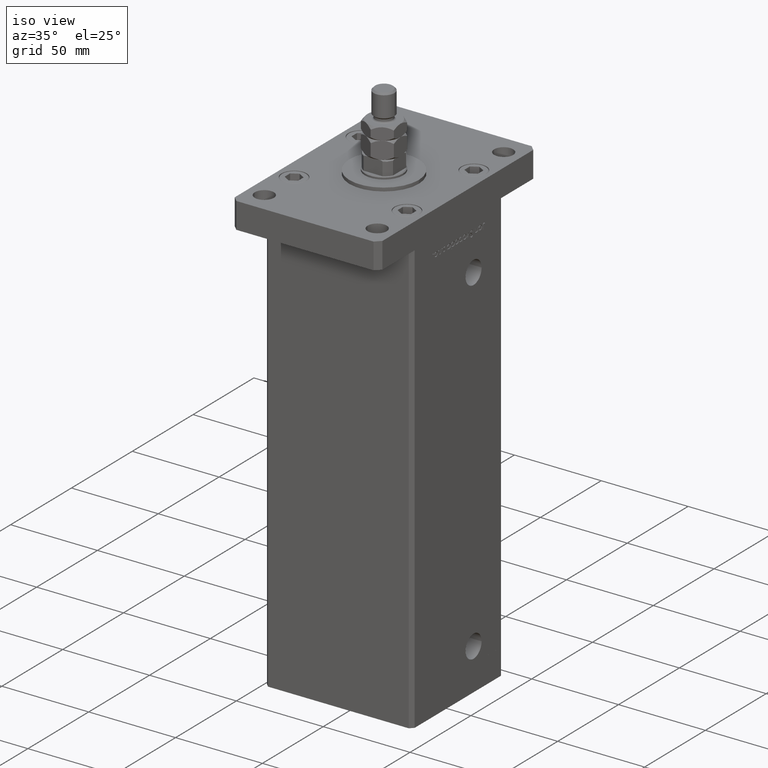
[diagram: clean part render]
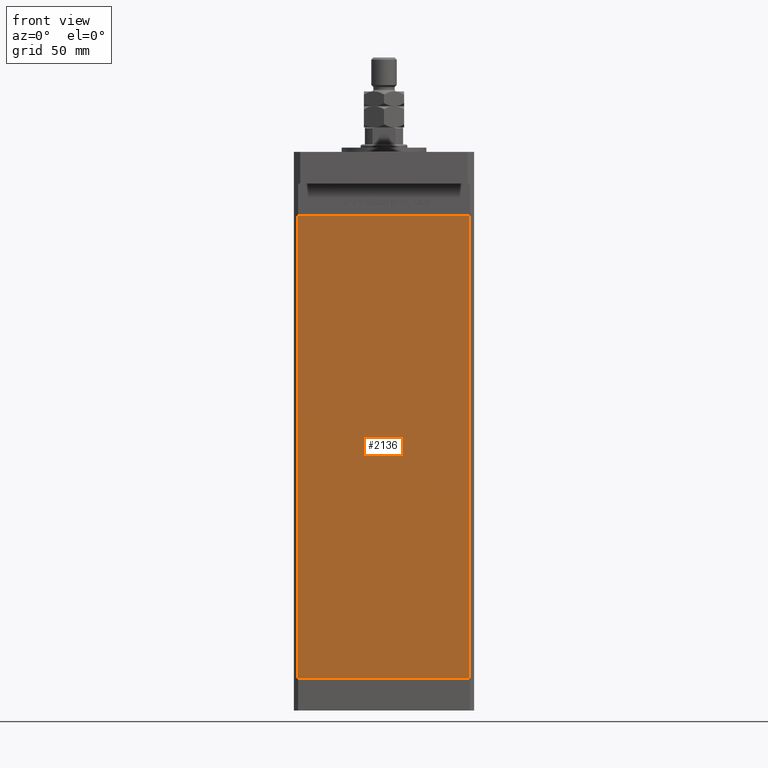
[diagram: tour spotlight — one face highlighted and labeled with its STEP entity id]
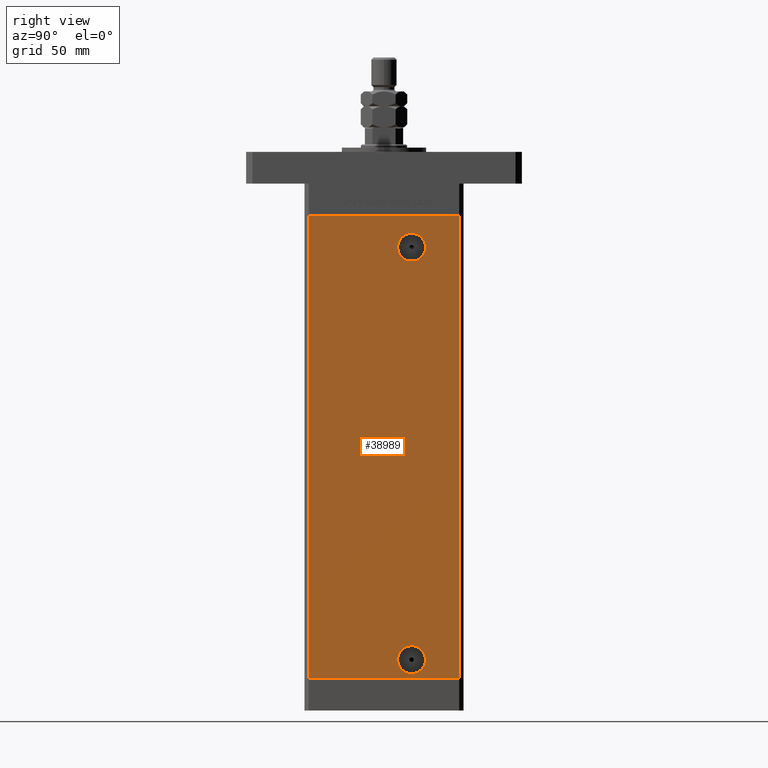
[diagram: tour spotlight — one face highlighted and labeled with its STEP entity id]
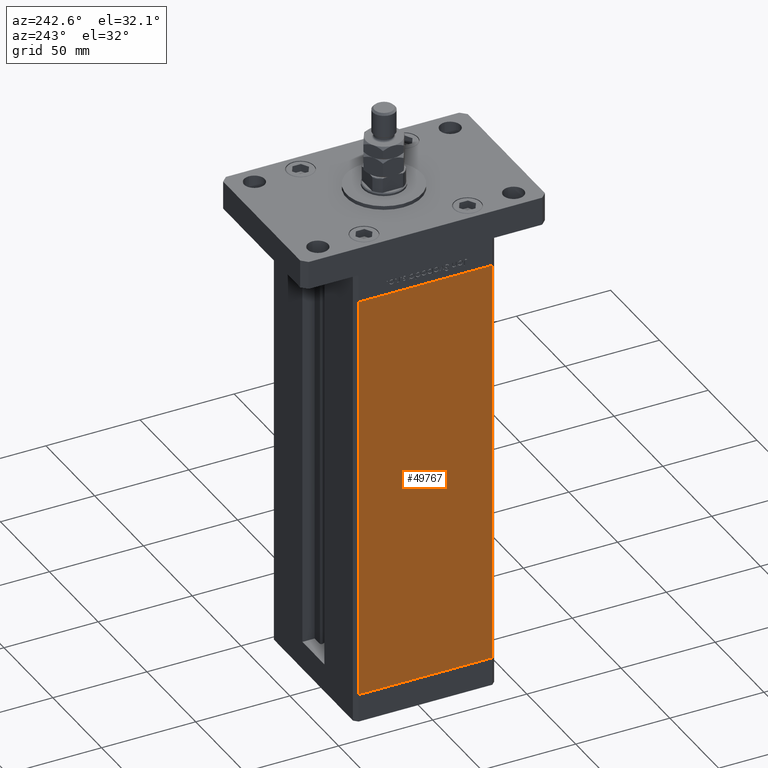
[diagram: tour spotlight — one face highlighted and labeled with its STEP entity id]
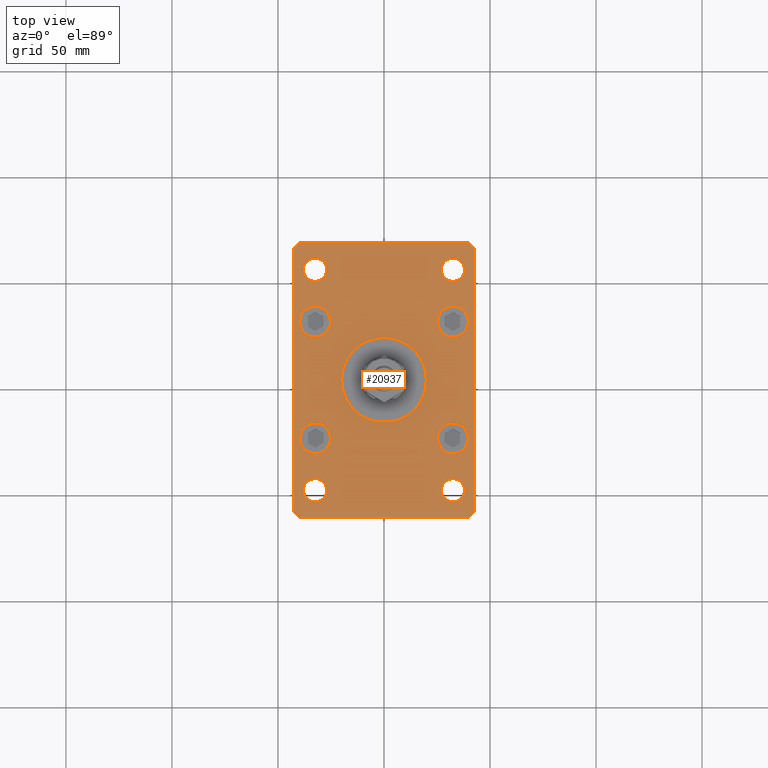
[diagram: tour spotlight — one face highlighted and labeled with its STEP entity id]
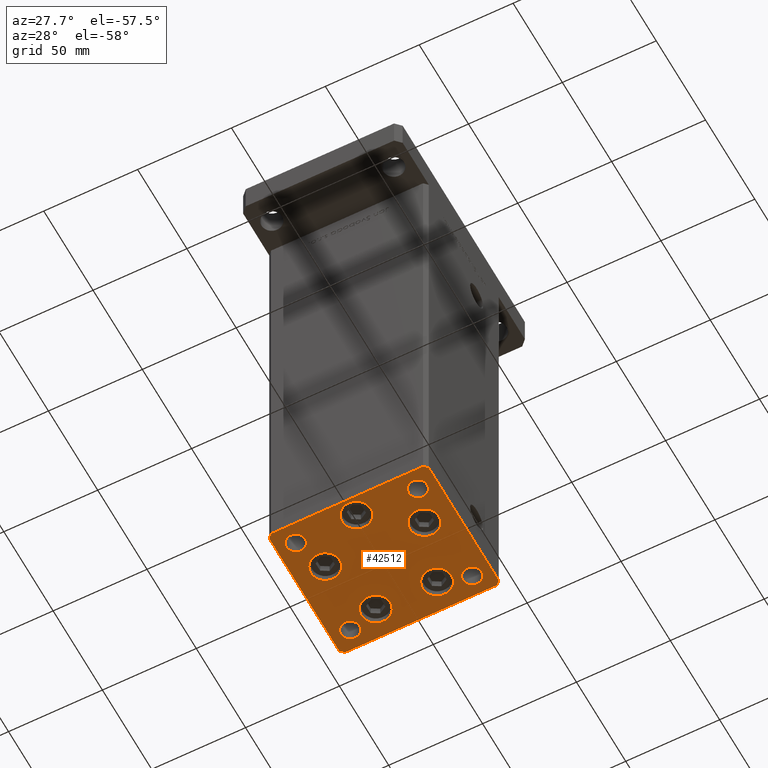
[diagram: tour spotlight — one face highlighted and labeled with its STEP entity id]
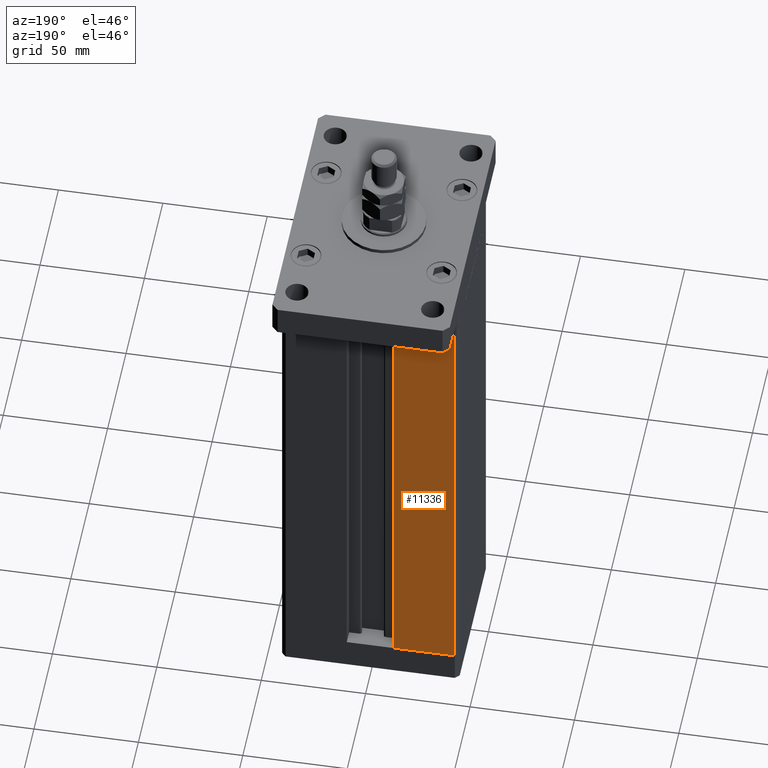
[diagram: tour spotlight — one face highlighted and labeled with its STEP entity id]
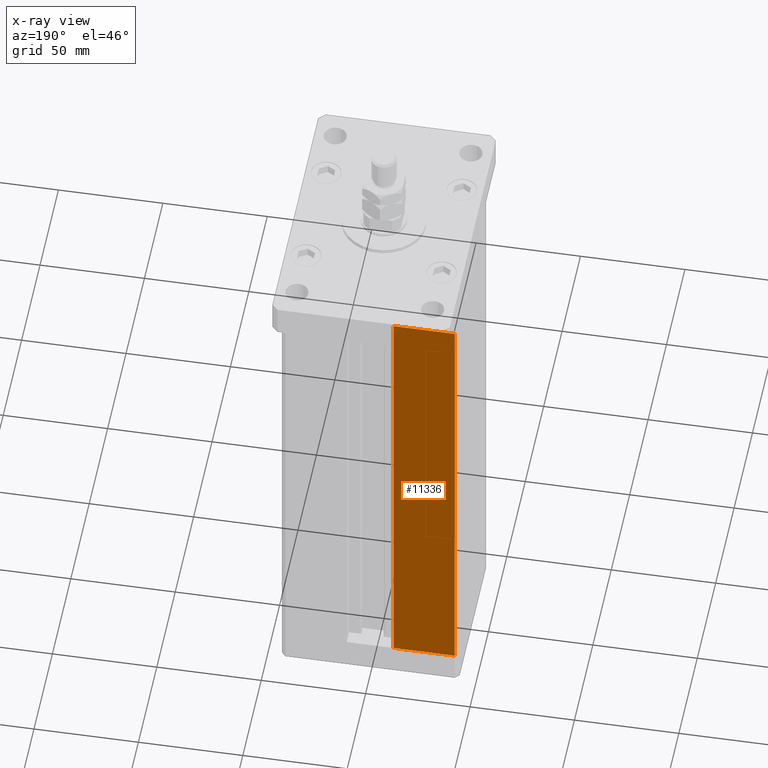
[diagram: x-ray of the same camera — body ghosted, this tour face saturated]
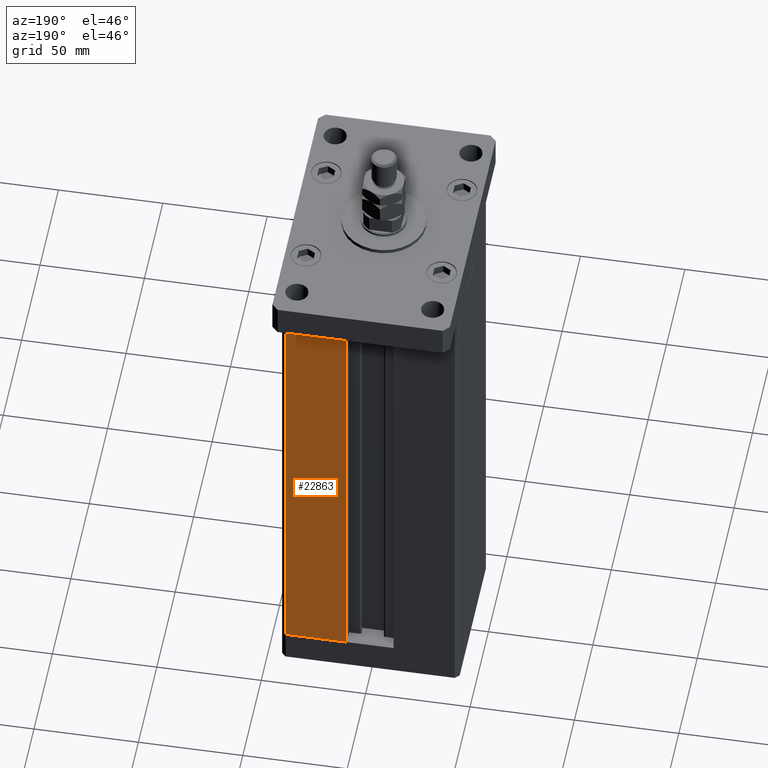
[diagram: tour spotlight — one face highlighted and labeled with its STEP entity id]
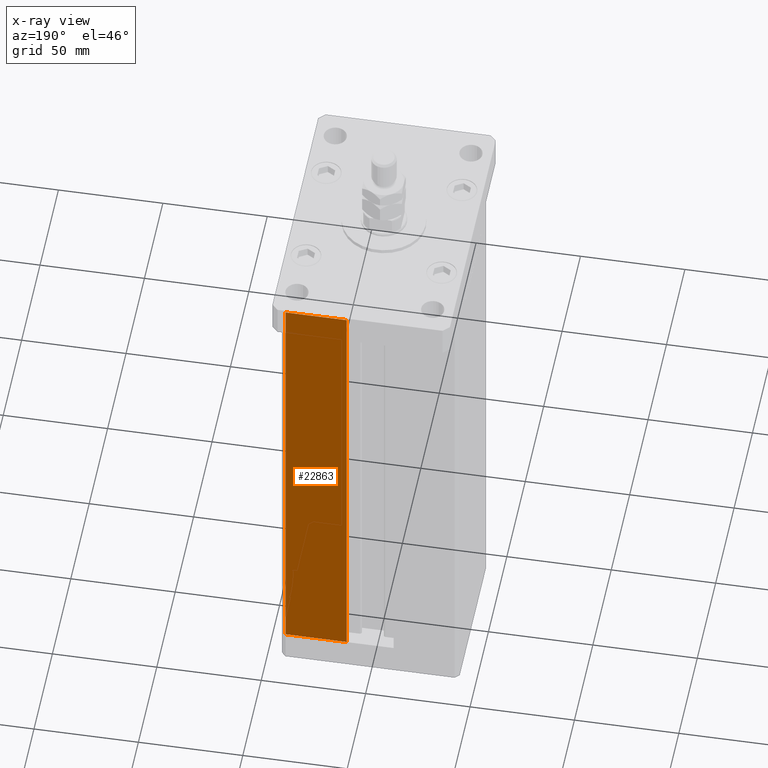
[diagram: x-ray of the same camera — body ghosted, this tour face saturated]
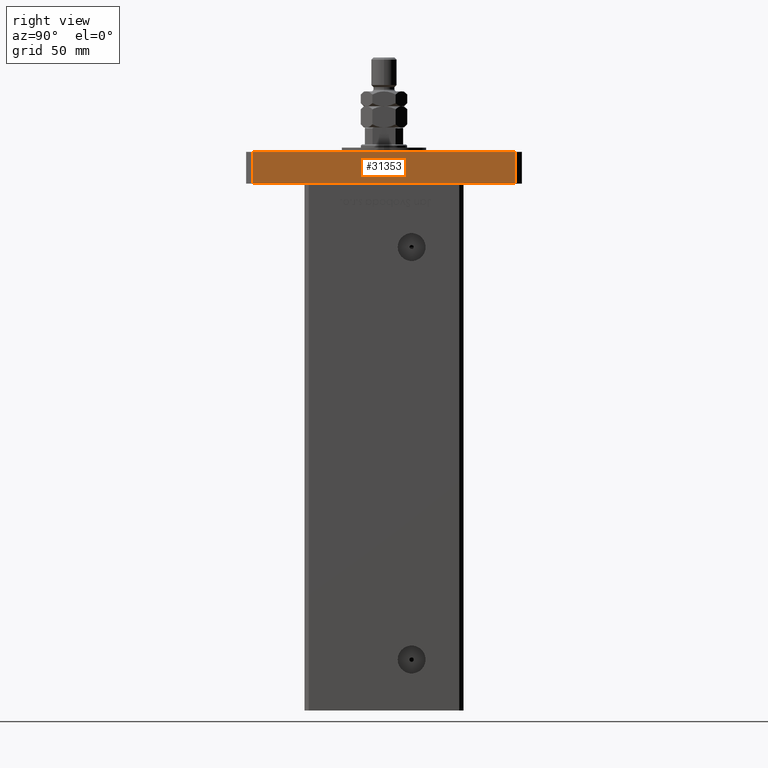
[diagram: tour spotlight — one face highlighted and labeled with its STEP entity id]
A machine part: a face-by-face anatomy tour. The part has 1357 B-rep faces; the first image is the clean iso view, then the 8 largest visible faces are spotlighted one at a time (largest first), each with its STEP entity span.

Face 1 — front view, entity #2136. In plain terms, the highlighted planar face has unit normal (0, 1, 0).
Definition (entity closure, byte-faithful):
#505 = CARTESIAN_POINT ( 'NONE',  ( 40.49999999999998579, -37.50000000000000711, 0.000000000000000000 ) ) ;
#2104 = VERTEX_POINT ( 'NONE', #45072 ) ;
#2136 = ADVANCED_FACE ( 'NONE', ( #53733 ), #32529, .F. ) ;
#3353 = EDGE_CURVE ( 'NONE', #16313, #34063, #55203, .T. ) ;
#3495 = VECTOR ( 'NONE', #34569, 1000.000000000000000 ) ;
#5054 = LINE ( 'NONE', #38815, #38596 ) ;
#5189 = DIRECTION ( 'NONE',  ( 1.000000000000000000, 0.000000000000000000, 0.000000000000000000 ) ) ;
#5745 = DIRECTION ( 'NONE',  ( 0.000000000000000000, -0.000000000000000000, 1.000000000000000000 ) ) ;
#7123 = AXIS2_PLACEMENT_3D ( 'NONE', #9947, #26968, #5745 ) ;
#9947 = CARTESIAN_POINT ( 'NONE',  ( -40.49999999999998579, -37.50000000000000711, 218.5000000000000000 ) ) ;
#12227 = ORIENTED_EDGE ( 'NONE', *, *, #3353, .T. ) ;
#14402 = LINE ( 'NONE', #22767, #33879 ) ;
#15779 = EDGE_LOOP ( 'NONE', ( #12227, #29110, #33966, #27239 ) ) ;
#16313 = VERTEX_POINT ( 'NONE', #30033 ) ;
#17562 = CARTESIAN_POINT ( 'NONE',  ( -40.49999999999998579, -37.50000000000000711, 0.000000000000000000 ) ) ;
#20448 = LINE ( 'NONE', #37441, #40913 ) ;
#21035 = EDGE_CURVE ( 'NONE', #2104, #16313, #20448, .T. ) ;
#22767 = CARTESIAN_POINT ( 'NONE',  ( -40.49999999999998579, -37.50000000000000711, 218.5000000000000000 ) ) ;
#26462 = CARTESIAN_POINT ( 'NONE',  ( 40.49999999999998579, -37.50000000000000711, 218.5000000000000000 ) ) ;
#26968 = DIRECTION ( 'NONE',  ( 0.000000000000000000, 1.000000000000000000, 0.000000000000000000 ) ) ;
#27239 = ORIENTED_EDGE ( 'NONE', *, *, #21035, .T. ) ;
#29110 = ORIENTED_EDGE ( 'NONE', *, *, #36663, .F. ) ;
#29631 = DIRECTION ( 'NONE',  ( -0.000000000000000000, -0.000000000000000000, -1.000000000000000000 ) ) ;
#30033 = CARTESIAN_POINT ( 'NONE',  ( -40.49999999999998579, -37.50000000000000711, 0.000000000000000000 ) ) ;
#32529 = PLANE ( 'NONE',  #7123 ) ;
#33879 = VECTOR ( 'NONE', #5189, 1000.000000000000000 ) ;
#33966 = ORIENTED_EDGE ( 'NONE', *, *, #47375, .F. ) ;
#34063 = VERTEX_POINT ( 'NONE', #505 ) ;
#34569 = DIRECTION ( 'NONE',  ( 1.000000000000000000, 0.000000000000000000, 0.000000000000000000 ) ) ;
#36663 = EDGE_CURVE ( 'NONE', #49412, #34063, #5054, .T. ) ;
#37441 = CARTESIAN_POINT ( 'NONE',  ( -40.49999999999998579, -37.50000000000000711, 218.5000000000000000 ) ) ;
#38596 = VECTOR ( 'NONE', #29631, 1000.000000000000000 ) ;
#38815 = CARTESIAN_POINT ( 'NONE',  ( 40.49999999999998579, -37.50000000000000711, 218.5000000000000000 ) ) ;
#40913 = VECTOR ( 'NONE', #46619, 1000.000000000000000 ) ;
#45072 = CARTESIAN_POINT ( 'NONE',  ( -40.49999999999998579, -37.50000000000000711, 218.5000000000000000 ) ) ;
#46619 = DIRECTION ( 'NONE',  ( -0.000000000000000000, -0.000000000000000000, -1.000000000000000000 ) ) ;
#47375 = EDGE_CURVE ( 'NONE', #2104, #49412, #14402, .T. ) ;
#49412 = VERTEX_POINT ( 'NONE', #26462 ) ;
#53733 = FACE_OUTER_BOUND ( 'NONE', #15779, .T. ) ;
#55203 = LINE ( 'NONE', #17562, #3495 ) ;

Face 2 — right view, entity #38989. In plain terms, the highlighted planar face has unit normal (1, -0, 0).
Definition (entity closure, byte-faithful):
#261 = LINE ( 'NONE', #9460, #43817 ) ;
#833 = CARTESIAN_POINT ( 'NONE',  ( 42.50000000000000711, 35.50000000000001421, 218.5000000000000000 ) ) ;
#900 = VECTOR ( 'NONE', #32993, 1000.000000000000000 ) ;
#1026 = CARTESIAN_POINT ( 'NONE',  ( 42.49999999999999289, 13.00000000000000000, 203.5000000000000000 ) ) ;
#1628 = EDGE_CURVE ( 'NONE', #37236, #5370, #42714, .T. ) ;
#2047 = DIRECTION ( 'NONE',  ( 1.000000000000000000, -2.275047181608927644E-16, 0.000000000000000000 ) ) ;
#2265 = CIRCLE ( 'NONE', #4009, 6.579999999999997407 ) ;
#2275 = CARTESIAN_POINT ( 'NONE',  ( 42.49999999999999289, 13.00000000000000000, 9.000000000000012434 ) ) ;
#2740 = ORIENTED_EDGE ( 'NONE', *, *, #37168, .F. ) ;
#2999 = CARTESIAN_POINT ( 'NONE',  ( 42.50000000000000711, 35.50000000000001421, 218.5000000000000000 ) ) ;
#4009 = AXIS2_PLACEMENT_3D ( 'NONE', #2275, #48852, #53894 ) ;
#4746 = FACE_BOUND ( 'NONE', #43280, .T. ) ;
#4757 = AXIS2_PLACEMENT_3D ( 'NONE', #1026, #18063, #35062 ) ;
#5091 = VERTEX_POINT ( 'NONE', #26142 ) ;
#5157 = CIRCLE ( 'NONE', #28357, 6.580000000000014282 ) ;
#5370 = VERTEX_POINT ( 'NONE', #22705 ) ;
#7220 = DIRECTION ( 'NONE',  ( 2.931927001650941360E-16, 1.000000000000000000, 0.000000000000000000 ) ) ;
#7914 = CARTESIAN_POINT ( 'NONE',  ( 42.49999999999999289, 19.58000000000001251, 203.5000000000000000 ) ) ;
#8177 = EDGE_LOOP ( 'NONE', ( #11631, #14605, #19447, #43744 ) ) ;
#9209 = VERTEX_POINT ( 'NONE', #48785 ) ;
#9460 = CARTESIAN_POINT ( 'NONE',  ( 42.50000000000000711, 35.50000000000001421, 0.000000000000000000 ) ) ;
#10310 = LINE ( 'NONE', #27326, #27718 ) ;
#10402 = VERTEX_POINT ( 'NONE', #2999 ) ;
#11631 = ORIENTED_EDGE ( 'NONE', *, *, #28941, .F. ) ;
#13106 = DIRECTION ( 'NONE',  ( -2.931927001650941360E-16, -1.000000000000000000, 0.000000000000000000 ) ) ;
#13267 = CARTESIAN_POINT ( 'NONE',  ( 42.49999999999998579, -35.50000000000000711, 0.000000000000000000 ) ) ;
#13403 = FACE_OUTER_BOUND ( 'NONE', #8177, .T. ) ;
#13487 = EDGE_CURVE ( 'NONE', #19925, #9209, #5157, .T. ) ;
#14605 = ORIENTED_EDGE ( 'NONE', *, *, #44073, .F. ) ;
#14952 = CARTESIAN_POINT ( 'NONE',  ( 42.49999999999998579, -35.50000000000000711, 218.5000000000000000 ) ) ;
#15357 = DIRECTION ( 'NONE',  ( -0.000000000000000000, -0.000000000000000000, -1.000000000000000000 ) ) ;
#15995 = LINE ( 'NONE', #36342, #900 ) ;
#16476 = VERTEX_POINT ( 'NONE', #14952 ) ;
#16547 = ORIENTED_EDGE ( 'NONE', *, *, #38740, .F. ) ;
#17873 = FACE_BOUND ( 'NONE', #50326, .T. ) ;
#18063 = DIRECTION ( 'NONE',  ( 1.000000000000000000, -2.275047181608927644E-16, 0.000000000000000000 ) ) ;
#19447 = ORIENTED_EDGE ( 'NONE', *, *, #26685, .T. ) ;
#19716 = CARTESIAN_POINT ( 'NONE',  ( 42.49999999999999289, 6.420000000000000817, 9.000000000000012434 ) ) ;
#19925 = VERTEX_POINT ( 'NONE', #7914 ) ;
#20065 = ORIENTED_EDGE ( 'NONE', *, *, #13487, .F. ) ;
#21016 = CARTESIAN_POINT ( 'NONE',  ( 42.49999999999999289, 13.00000000000000000, 203.5000000000000000 ) ) ;
#21865 = AXIS2_PLACEMENT_3D ( 'NONE', #833, #32612, #7220 ) ;
#22090 = DIRECTION ( 'NONE',  ( 1.000000000000000000, -2.275047181608927644E-16, 0.000000000000000000 ) ) ;
#22705 = CARTESIAN_POINT ( 'NONE',  ( 42.49999999999999289, 19.57999999999999829, 9.000000000000012434 ) ) ;
#26142 = CARTESIAN_POINT ( 'NONE',  ( 42.50000000000000711, 35.50000000000001421, 0.000000000000000000 ) ) ;
#26685 = EDGE_CURVE ( 'NONE', #10402, #16476, #28422, .T. ) ;
#27326 = CARTESIAN_POINT ( 'NONE',  ( 42.50000000000000711, 35.50000000000001421, 218.5000000000000000 ) ) ;
#27717 = DIRECTION ( 'NONE',  ( 0.000000000000000000, 1.000000000000000000, 0.000000000000000000 ) ) ;
#27718 = VECTOR ( 'NONE', #15357, 1000.000000000000000 ) ;
#28357 = AXIS2_PLACEMENT_3D ( 'NONE', #21016, #22090, #39091 ) ;
#28422 = LINE ( 'NONE', #32872, #36631 ) ;
#28941 = EDGE_CURVE ( 'NONE', #5091, #52080, #261, .T. ) ;
#29514 = DIRECTION ( 'NONE',  ( -2.931927001650941360E-16, -1.000000000000000000, 0.000000000000000000 ) ) ;
#32612 = DIRECTION ( 'NONE',  ( 1.000000000000000000, -2.931927001650941360E-16, 0.000000000000000000 ) ) ;
#32872 = CARTESIAN_POINT ( 'NONE',  ( 42.50000000000000711, 35.50000000000001421, 218.5000000000000000 ) ) ;
#32993 = DIRECTION ( 'NONE',  ( -0.000000000000000000, -0.000000000000000000, -1.000000000000000000 ) ) ;
#35062 = DIRECTION ( 'NONE',  ( 0.000000000000000000, 1.000000000000000000, 0.000000000000000000 ) ) ;
#36342 = CARTESIAN_POINT ( 'NONE',  ( 42.49999999999998579, -35.50000000000000711, 218.5000000000000000 ) ) ;
#36631 = VECTOR ( 'NONE', #29514, 1000.000000000000000 ) ;
#37168 = EDGE_CURVE ( 'NONE', #9209, #19925, #48435, .T. ) ;
#37236 = VERTEX_POINT ( 'NONE', #19716 ) ;
#38740 = EDGE_CURVE ( 'NONE', #5370, #37236, #2265, .T. ) ;
#38776 = PLANE ( 'NONE',  #21865 ) ;
#38989 = ADVANCED_FACE ( 'NONE', ( #4746, #17873, #13403 ), #38776, .T. ) ;
#39091 = DIRECTION ( 'NONE',  ( 0.000000000000000000, 1.000000000000000000, 0.000000000000000000 ) ) ;
#42714 = CIRCLE ( 'NONE', #49869, 6.579999999999997407 ) ;
#43280 = EDGE_LOOP ( 'NONE', ( #20065, #2740 ) ) ;
#43744 = ORIENTED_EDGE ( 'NONE', *, *, #45677, .T. ) ;
#43817 = VECTOR ( 'NONE', #13106, 1000.000000000000000 ) ;
#44073 = EDGE_CURVE ( 'NONE', #10402, #5091, #10310, .T. ) ;
#44427 = CARTESIAN_POINT ( 'NONE',  ( 42.49999999999999289, 13.00000000000000000, 9.000000000000012434 ) ) ;
#45677 = EDGE_CURVE ( 'NONE', #16476, #52080, #15995, .T. ) ;
#48435 = CIRCLE ( 'NONE', #4757, 6.580000000000014282 ) ;
#48785 = CARTESIAN_POINT ( 'NONE',  ( 42.49999999999999289, 6.419999999999983942, 203.5000000000000000 ) ) ;
#48852 = DIRECTION ( 'NONE',  ( 1.000000000000000000, -2.275047181608927644E-16, 0.000000000000000000 ) ) ;
#49869 = AXIS2_PLACEMENT_3D ( 'NONE', #44427, #2047, #27717 ) ;
#50326 = EDGE_LOOP ( 'NONE', ( #16547, #55127 ) ) ;
#52080 = VERTEX_POINT ( 'NONE', #13267 ) ;
#53894 = DIRECTION ( 'NONE',  ( 0.000000000000000000, 1.000000000000000000, 0.000000000000000000 ) ) ;
#55127 = ORIENTED_EDGE ( 'NONE', *, *, #1628, .F. ) ;

Face 3 — auxiliary view, entity #49767. In plain terms, the highlighted planar face has unit normal (1, 0, 0).
Definition (entity closure, byte-faithful):
#50 = EDGE_CURVE ( 'NONE', #39727, #38922, #15077, .T. ) ;
#2225 = LINE ( 'NONE', #6401, #16928 ) ;
#6401 = CARTESIAN_POINT ( 'NONE',  ( -42.50000000000000711, 35.50000000000001421, 218.5000000000000000 ) ) ;
#10655 = VECTOR ( 'NONE', #14088, 1000.000000000000000 ) ;
#13955 = CARTESIAN_POINT ( 'NONE',  ( -42.49999999999998579, -35.50000000000000711, 218.5000000000000000 ) ) ;
#14088 = DIRECTION ( 'NONE',  ( -0.000000000000000000, -0.000000000000000000, -1.000000000000000000 ) ) ;
#14246 = DIRECTION ( 'NONE',  ( 2.931927001650941360E-16, -1.000000000000000000, 0.000000000000000000 ) ) ;
#14689 = EDGE_CURVE ( 'NONE', #46454, #22104, #41855, .T. ) ;
#15077 = LINE ( 'NONE', #32074, #31083 ) ;
#16496 = CARTESIAN_POINT ( 'NONE',  ( -42.50000000000000711, 35.50000000000001421, 0.000000000000000000 ) ) ;
#16928 = VECTOR ( 'NONE', #19264, 1000.000000000000000 ) ;
#18566 = CARTESIAN_POINT ( 'NONE',  ( -42.50000000000000711, 35.50000000000001421, 218.5000000000000000 ) ) ;
#19098 = EDGE_CURVE ( 'NONE', #38922, #22104, #31371, .T. ) ;
#19264 = DIRECTION ( 'NONE',  ( -0.000000000000000000, -0.000000000000000000, -1.000000000000000000 ) ) ;
#20119 = ORIENTED_EDGE ( 'NONE', *, *, #19098, .F. ) ;
#20936 = ORIENTED_EDGE ( 'NONE', *, *, #50, .F. ) ;
#22104 = VERTEX_POINT ( 'NONE', #38391 ) ;
#22585 = EDGE_CURVE ( 'NONE', #39727, #46454, #2225, .T. ) ;
#22750 = FACE_OUTER_BOUND ( 'NONE', #34408, .T. ) ;
#23000 = VECTOR ( 'NONE', #33491, 1000.000000000000000 ) ;
#25148 = CARTESIAN_POINT ( 'NONE',  ( -42.50000000000000711, 35.50000000000001421, 218.5000000000000000 ) ) ;
#27005 = ORIENTED_EDGE ( 'NONE', *, *, #14689, .T. ) ;
#27763 = PLANE ( 'NONE',  #47331 ) ;
#31083 = VECTOR ( 'NONE', #14246, 1000.000000000000000 ) ;
#31371 = LINE ( 'NONE', #31642, #10655 ) ;
#31642 = CARTESIAN_POINT ( 'NONE',  ( -42.49999999999998579, -35.50000000000000711, 218.5000000000000000 ) ) ;
#32074 = CARTESIAN_POINT ( 'NONE',  ( -42.50000000000000711, 35.50000000000001421, 218.5000000000000000 ) ) ;
#33491 = DIRECTION ( 'NONE',  ( 2.931927001650941360E-16, -1.000000000000000000, 0.000000000000000000 ) ) ;
#34408 = EDGE_LOOP ( 'NONE', ( #27005, #20119, #20936, #39615 ) ) ;
#37853 = CARTESIAN_POINT ( 'NONE',  ( -42.50000000000000711, 35.50000000000001421, 0.000000000000000000 ) ) ;
#38391 = CARTESIAN_POINT ( 'NONE',  ( -42.49999999999998579, -35.50000000000000711, 0.000000000000000000 ) ) ;
#38922 = VERTEX_POINT ( 'NONE', #13955 ) ;
#39615 = ORIENTED_EDGE ( 'NONE', *, *, #22585, .T. ) ;
#39727 = VERTEX_POINT ( 'NONE', #25148 ) ;
#41855 = LINE ( 'NONE', #16496, #23000 ) ;
#44202 = DIRECTION ( 'NONE',  ( -2.931927001650941360E-16, 1.000000000000000000, 0.000000000000000000 ) ) ;
#46454 = VERTEX_POINT ( 'NONE', #37853 ) ;
#47331 = AXIS2_PLACEMENT_3D ( 'NONE', #18566, #52316, #44202 ) ;
#49767 = ADVANCED_FACE ( 'NONE', ( #22750 ), #27763, .F. ) ;
#52316 = DIRECTION ( 'NONE',  ( 1.000000000000000000, 2.931927001650941360E-16, -0.000000000000000000 ) ) ;

Face 4 — top view, entity #20937. In plain terms, the highlighted planar face has unit normal (0, 0, 1).
Definition (entity closure, byte-faithful):
#268 = EDGE_CURVE ( 'NONE', #41568, #18241, #30202, .T. ) ;
#305 = ORIENTED_EDGE ( 'NONE', *, *, #31738, .T. ) ;
#318 = CARTESIAN_POINT ( 'NONE',  ( -26.99999999999998579, -52.00000000000000711, 15.00000000000000000 ) ) ;
#847 = EDGE_CURVE ( 'NONE', #41907, #23694, #16033, .T. ) ;
#1188 = CARTESIAN_POINT ( 'NONE',  ( 32.50000000000000000, 27.50000000000000000, 15.00000000000000000 ) ) ;
#1204 = FACE_BOUND ( 'NONE', #17193, .T. ) ;
#1410 = CARTESIAN_POINT ( 'NONE',  ( 20.00000000000000000, 2.449293598294706513E-15, 15.00000000000000000 ) ) ;
#1622 = CARTESIAN_POINT ( 'NONE',  ( -42.50000000000002132, 62.00000000000000711, 15.00000000000000000 ) ) ;
#1760 = CARTESIAN_POINT ( 'NONE',  ( -39.75000000000000000, -27.50000000000000000, 15.00000000000000000 ) ) ;
#1919 = ORIENTED_EDGE ( 'NONE', *, *, #10071, .F. ) ;
#2029 = FACE_BOUND ( 'NONE', #18881, .T. ) ;
#2065 = VERTEX_POINT ( 'NONE', #22232 ) ;
#2393 = DIRECTION ( 'NONE',  ( 1.000000000000000000, 0.000000000000000000, 0.000000000000000000 ) ) ;
#2569 = VECTOR ( 'NONE', #15511, 1000.000000000000000 ) ;
#3327 = DIRECTION ( 'NONE',  ( 0.000000000000000000, 0.000000000000000000, 1.000000000000000000 ) ) ;
#3349 = DIRECTION ( 'NONE',  ( 0.000000000000000000, 0.000000000000000000, 1.000000000000000000 ) ) ;
#3712 = CARTESIAN_POINT ( 'NONE',  ( -38.00000000000000000, 52.00000000000000000, 15.00000000000000000 ) ) ;
#4056 = VECTOR ( 'NONE', #52701, 1000.000000000000000 ) ;
#4158 = DIRECTION ( 'NONE',  ( 0.000000000000000000, 0.000000000000000000, 1.000000000000000000 ) ) ;
#4202 = DIRECTION ( 'NONE',  ( 0.000000000000000000, 0.000000000000000000, 1.000000000000000000 ) ) ;
#4421 = CARTESIAN_POINT ( 'NONE',  ( 32.50000000000000000, -27.50000000000000000, 15.00000000000000000 ) ) ;
#4425 = VERTEX_POINT ( 'NONE', #20881 ) ;
#5233 = CIRCLE ( 'NONE', #14125, 7.249999999999999112 ) ;
#5868 = DIRECTION ( 'NONE',  ( 0.000000000000000000, 0.000000000000000000, 1.000000000000000000 ) ) ;
#6287 = CARTESIAN_POINT ( 'NONE',  ( -32.50000000000000711, 27.50000000000000000, 15.00000000000000000 ) ) ;
#6654 = LINE ( 'NONE', #15335, #4056 ) ;
#6757 = VECTOR ( 'NONE', #44663, 1000.000000000000000 ) ;
#6763 = FACE_BOUND ( 'NONE', #32504, .T. ) ;
#6827 = CARTESIAN_POINT ( 'NONE',  ( 32.50000000000000000, 51.99999999999999289, 15.00000000000000000 ) ) ;
#7356 = ORIENTED_EDGE ( 'NONE', *, *, #38548, .T. ) ;
#7404 = DIRECTION ( 'NONE',  ( -0.7071067811865417996, 0.7071067811865532349, 0.000000000000000000 ) ) ;
#7428 = AXIS2_PLACEMENT_3D ( 'NONE', #42941, #4158, #8351 ) ;
#7640 = CARTESIAN_POINT ( 'NONE',  ( -25.25000000000000000, -27.50000000000000000, 15.00000000000000000 ) ) ;
#8037 = EDGE_CURVE ( 'NONE', #49823, #29480, #19307, .T. ) ;
#8226 = CIRCLE ( 'NONE', #11825, 5.499999999999998224 ) ;
#8318 = EDGE_CURVE ( 'NONE', #16983, #49823, #6654, .T. ) ;
#8351 = DIRECTION ( 'NONE',  ( 1.000000000000000000, 0.000000000000000000, 0.000000000000000000 ) ) ;
#8716 = CARTESIAN_POINT ( 'NONE',  ( -39.50000000000000000, -65.00000000000000000, 15.00000000000000000 ) ) ;
#8791 = ORIENTED_EDGE ( 'NONE', *, *, #8037, .T. ) ;
#8873 = AXIS2_PLACEMENT_3D ( 'NONE', #51146, #29938, #29671 ) ;
#9168 = CARTESIAN_POINT ( 'NONE',  ( 32.50000000000000000, 51.99999999999999289, 15.00000000000000000 ) ) ;
#9442 = DIRECTION ( 'NONE',  ( 1.000000000000000000, 0.000000000000000000, 0.000000000000000000 ) ) ;
#9455 = VERTEX_POINT ( 'NONE', #39263 ) ;
#9979 = AXIS2_PLACEMENT_3D ( 'NONE', #43542, #30162, #47171 ) ;
#9999 = EDGE_LOOP ( 'NONE', ( #40764, #12372 ) ) ;
#10071 = EDGE_CURVE ( 'NONE', #46098, #42214, #40675, .T. ) ;
#10120 = DIRECTION ( 'NONE',  ( 0.000000000000000000, 0.000000000000000000, 1.000000000000000000 ) ) ;
#10193 = CARTESIAN_POINT ( 'NONE',  ( 0.000000000000000000, 0.000000000000000000, 15.00000000000000000 ) ) ;
#10305 = ORIENTED_EDGE ( 'NONE', *, *, #21013, .F. ) ;
#10458 = LINE ( 'NONE', #18855, #2569 ) ;
#10611 = AXIS2_PLACEMENT_3D ( 'NONE', #11505, #20179, #16266 ) ;
#10633 = CARTESIAN_POINT ( 'NONE',  ( -42.49999999999999289, -62.00000000000001421, 15.00000000000000000 ) ) ;
#10650 = CIRCLE ( 'NONE', #15133, 5.499999999999991118 ) ;
#10953 = DIRECTION ( 'NONE',  ( 1.000000000000000000, 0.000000000000000000, -0.000000000000000000 ) ) ;
#11424 = CARTESIAN_POINT ( 'NONE',  ( 39.75000000000000000, 27.50000000000000000, 15.00000000000000000 ) ) ;
#11505 = CARTESIAN_POINT ( 'NONE',  ( -32.49999999999997868, -52.00000000000000711, 15.00000000000000000 ) ) ;
#11777 = DIRECTION ( 'NONE',  ( 1.000000000000000000, 0.000000000000000000, 0.000000000000000000 ) ) ;
#11825 = AXIS2_PLACEMENT_3D ( 'NONE', #27313, #39589, #14501 ) ;
#12246 = DIRECTION ( 'NONE',  ( 1.000000000000000000, 0.000000000000000000, 0.000000000000000000 ) ) ;
#12372 = ORIENTED_EDGE ( 'NONE', *, *, #40645, .F. ) ;
#12786 = VERTEX_POINT ( 'NONE', #35412 ) ;
#13185 = LINE ( 'NONE', #8716, #22736 ) ;
#13412 = VECTOR ( 'NONE', #19708, 1000.000000000000114 ) ;
#13536 = CIRCLE ( 'NONE', #9979, 5.499999999999994671 ) ;
#13810 = ORIENTED_EDGE ( 'NONE', *, *, #47516, .T. ) ;
#13862 = ORIENTED_EDGE ( 'NONE', *, *, #8318, .T. ) ;
#13974 = CARTESIAN_POINT ( 'NONE',  ( -32.50000000000000000, -27.50000000000000000, 15.00000000000000000 ) ) ;
#14125 = AXIS2_PLACEMENT_3D ( 'NONE', #13974, #34897, #39063 ) ;
#14501 = DIRECTION ( 'NONE',  ( 1.000000000000000000, 0.000000000000000000, 0.000000000000000000 ) ) ;
#14595 = FACE_BOUND ( 'NONE', #9999, .T. ) ;
#14872 = FACE_OUTER_BOUND ( 'NONE', #48996, .T. ) ;
#15133 = AXIS2_PLACEMENT_3D ( 'NONE', #9168, #26738, #22006 ) ;
#15232 = DIRECTION ( 'NONE',  ( 0.000000000000000000, 0.000000000000000000, 1.000000000000000000 ) ) ;
#15335 = CARTESIAN_POINT ( 'NONE',  ( -42.50000000000002132, 62.00000000000000711, 15.00000000000000000 ) ) ;
#15511 = DIRECTION ( 'NONE',  ( 0.000000000000000000, 1.000000000000000000, 0.000000000000000000 ) ) ;
#15849 = ORIENTED_EDGE ( 'NONE', *, *, #28776, .F. ) ;
#16033 = CIRCLE ( 'NONE', #32935, 5.499999999999994671 ) ;
#16266 = DIRECTION ( 'NONE',  ( 1.000000000000000000, 0.000000000000000000, 0.000000000000000000 ) ) ;
#16983 = VERTEX_POINT ( 'NONE', #1622 ) ;
#17193 = EDGE_LOOP ( 'NONE', ( #43539, #44844 ) ) ;
#17748 = CARTESIAN_POINT ( 'NONE',  ( -39.50000000000003553, 65.00000000000000000, 15.00000000000000000 ) ) ;
#17833 = DIRECTION ( 'NONE',  ( 0.000000000000000000, 0.000000000000000000, 1.000000000000000000 ) ) ;
#18087 = VECTOR ( 'NONE', #47164, 1000.000000000000000 ) ;
#18241 = VERTEX_POINT ( 'NONE', #30807 ) ;
#18564 = CARTESIAN_POINT ( 'NONE',  ( 27.00000000000001421, 51.99999999999999289, 15.00000000000000000 ) ) ;
#18855 = CARTESIAN_POINT ( 'NONE',  ( 42.50000000000000000, -61.99999999999988631, 15.00000000000000000 ) ) ;
#18881 = EDGE_LOOP ( 'NONE', ( #25994, #49169 ) ) ;
#19191 = CARTESIAN_POINT ( 'NONE',  ( -20.00000000000000000, 0.000000000000000000, 15.00000000000000000 ) ) ;
#19307 = LINE ( 'NONE', #10633, #6757 ) ;
#19619 = VERTEX_POINT ( 'NONE', #19191 ) ;
#19708 = DIRECTION ( 'NONE',  ( 0.7071067811865459074, 0.7071067811865491270, 0.000000000000000000 ) ) ;
#19739 = CARTESIAN_POINT ( 'NONE',  ( 32.49999999999997868, -52.00000000000000711, 15.00000000000000000 ) ) ;
#19926 = CIRCLE ( 'NONE', #7428, 7.249999999999999112 ) ;
#20117 = CARTESIAN_POINT ( 'NONE',  ( -32.49999999999997868, -52.00000000000000711, 15.00000000000000000 ) ) ;
#20179 = DIRECTION ( 'NONE',  ( 0.000000000000000000, 0.000000000000000000, 1.000000000000000000 ) ) ;
#20426 = EDGE_CURVE ( 'NONE', #25244, #43579, #5233, .T. ) ;
#20599 = EDGE_CURVE ( 'NONE', #23144, #35036, #10458, .T. ) ;
#20789 = DIRECTION ( 'NONE',  ( 0.000000000000000000, 0.000000000000000000, 1.000000000000000000 ) ) ;
#20881 = CARTESIAN_POINT ( 'NONE',  ( -27.00000000000000711, 52.00000000000000000, 15.00000000000000000 ) ) ;
#20937 = ADVANCED_FACE ( 'NONE', ( #2029, #1204, #27700, #35496, #48060, #14872, #52528, #14595, #32152, #6763 ), #48338, .T. ) ;
#21013 = EDGE_CURVE ( 'NONE', #23694, #41907, #35534, .T. ) ;
#21333 = CARTESIAN_POINT ( 'NONE',  ( 42.50000000000000000, 62.00000000000000711, 15.00000000000000000 ) ) ;
#22006 = DIRECTION ( 'NONE',  ( 1.000000000000000000, 0.000000000000000000, 0.000000000000000000 ) ) ;
#22207 = VERTEX_POINT ( 'NONE', #18564 ) ;
#22232 = CARTESIAN_POINT ( 'NONE',  ( -39.75000000000000711, 27.50000000000000000, 15.00000000000000000 ) ) ;
#22284 = CARTESIAN_POINT ( 'NONE',  ( 25.25000000000000000, 27.50000000000000000, 15.00000000000000000 ) ) ;
#22481 = CARTESIAN_POINT ( 'NONE',  ( 42.50000000000000000, -61.99999999999988631, 15.00000000000000000 ) ) ;
#22504 = EDGE_LOOP ( 'NONE', ( #15849, #1919 ) ) ;
#22667 = CARTESIAN_POINT ( 'NONE',  ( -25.25000000000000711, 27.50000000000000000, 15.00000000000000000 ) ) ;
#22736 = VECTOR ( 'NONE', #30185, 1000.000000000000000 ) ;
#22798 = EDGE_CURVE ( 'NONE', #35611, #22207, #10650, .T. ) ;
#22903 = DIRECTION ( 'NONE',  ( 1.000000000000000000, 0.000000000000000000, 0.000000000000000000 ) ) ;
#23144 = VERTEX_POINT ( 'NONE', #22481 ) ;
#23276 = EDGE_CURVE ( 'NONE', #19619, #28031, #52549, .T. ) ;
#23694 = VERTEX_POINT ( 'NONE', #318 ) ;
#24141 = DIRECTION ( 'NONE',  ( 1.000000000000000000, 0.000000000000000000, 0.000000000000000000 ) ) ;
#24187 = DIRECTION ( 'NONE',  ( 1.000000000000000000, 0.000000000000000000, 0.000000000000000000 ) ) ;
#24900 = EDGE_CURVE ( 'NONE', #9455, #23144, #52889, .T. ) ;
#25033 = ORIENTED_EDGE ( 'NONE', *, *, #33390, .F. ) ;
#25244 = VERTEX_POINT ( 'NONE', #1760 ) ;
#25444 = ORIENTED_EDGE ( 'NONE', *, *, #35572, .F. ) ;
#25994 = ORIENTED_EDGE ( 'NONE', *, *, #23276, .F. ) ;
#25998 = CIRCLE ( 'NONE', #46483, 7.249999999999999112 ) ;
#26724 = CIRCLE ( 'NONE', #8873, 7.249999999999999112 ) ;
#26738 = DIRECTION ( 'NONE',  ( 0.000000000000000000, 0.000000000000000000, 1.000000000000000000 ) ) ;
#27210 = DIRECTION ( 'NONE',  ( 1.000000000000000000, 0.000000000000000000, 0.000000000000000000 ) ) ;
#27313 = CARTESIAN_POINT ( 'NONE',  ( 32.49999999999997868, -52.00000000000000711, 15.00000000000000000 ) ) ;
#27488 = CARTESIAN_POINT ( 'NONE',  ( 39.50000000000001421, -64.99999999999988631, 15.00000000000000000 ) ) ;
#27700 = FACE_BOUND ( 'NONE', #38743, .T. ) ;
#28031 = VERTEX_POINT ( 'NONE', #1410 ) ;
#28333 = VERTEX_POINT ( 'NONE', #45126 ) ;
#28429 = EDGE_LOOP ( 'NONE', ( #36015, #10305 ) ) ;
#28709 = EDGE_CURVE ( 'NONE', #38590, #4425, #13536, .T. ) ;
#28776 = EDGE_CURVE ( 'NONE', #42214, #46098, #25998, .T. ) ;
#29327 = CARTESIAN_POINT ( 'NONE',  ( 32.50000000000000000, -27.50000000000000000, 15.00000000000000000 ) ) ;
#29480 = VERTEX_POINT ( 'NONE', #31820 ) ;
#29671 = DIRECTION ( 'NONE',  ( 1.000000000000000000, 0.000000000000000000, 0.000000000000000000 ) ) ;
#29938 = DIRECTION ( 'NONE',  ( 0.000000000000000000, 0.000000000000000000, 1.000000000000000000 ) ) ;
#30134 = EDGE_CURVE ( 'NONE', #42177, #12786, #8226, .T. ) ;
#30162 = DIRECTION ( 'NONE',  ( 0.000000000000000000, 0.000000000000000000, 1.000000000000000000 ) ) ;
#30185 = DIRECTION ( 'NONE',  ( 1.000000000000000000, 1.405345600791337191E-15, 0.000000000000000000 ) ) ;
#30202 = CIRCLE ( 'NONE', #53401, 7.249999999999999112 ) ;
#30807 = CARTESIAN_POINT ( 'NONE',  ( 39.75000000000000000, -27.50000000000000000, 15.00000000000000000 ) ) ;
#31128 = AXIS2_PLACEMENT_3D ( 'NONE', #29327, #4202, #11777 ) ;
#31176 = VERTEX_POINT ( 'NONE', #22667 ) ;
#31655 = CARTESIAN_POINT ( 'NONE',  ( -42.49999999999999289, -62.00000000000001421, 15.00000000000000000 ) ) ;
#31738 = EDGE_CURVE ( 'NONE', #51208, #16983, #48662, .T. ) ;
#31820 = CARTESIAN_POINT ( 'NONE',  ( -39.50000000000000000, -65.00000000000000000, 15.00000000000000000 ) ) ;
#31990 = AXIS2_PLACEMENT_3D ( 'NONE', #36338, #10120, #10953 ) ;
#32152 = FACE_BOUND ( 'NONE', #22504, .T. ) ;
#32504 = EDGE_LOOP ( 'NONE', ( #42123, #25033 ) ) ;
#32580 = ORIENTED_EDGE ( 'NONE', *, *, #40880, .F. ) ;
#32935 = AXIS2_PLACEMENT_3D ( 'NONE', #20117, #3349, #42111 ) ;
#33390 = EDGE_CURVE ( 'NONE', #12786, #42177, #47562, .T. ) ;
#34199 = AXIS2_PLACEMENT_3D ( 'NONE', #19739, #36737, #24187 ) ;
#34630 = LINE ( 'NONE', #52196, #18087 ) ;
#34897 = DIRECTION ( 'NONE',  ( 0.000000000000000000, 0.000000000000000000, 1.000000000000000000 ) ) ;
#34900 = CARTESIAN_POINT ( 'NONE',  ( -37.99999999999997868, -52.00000000000000711, 15.00000000000000000 ) ) ;
#35036 = VERTEX_POINT ( 'NONE', #44969 ) ;
#35412 = CARTESIAN_POINT ( 'NONE',  ( 37.99999999999997868, -52.00000000000000711, 15.00000000000000000 ) ) ;
#35496 = FACE_BOUND ( 'NONE', #49226, .T. ) ;
#35534 = CIRCLE ( 'NONE', #10611, 5.499999999999994671 ) ;
#35556 = DIRECTION ( 'NONE',  ( -0.7071067811865466846, -0.7071067811865483499, 0.000000000000000000 ) ) ;
#35572 = EDGE_CURVE ( 'NONE', #4425, #38590, #37691, .T. ) ;
#35611 = VERTEX_POINT ( 'NONE', #41138 ) ;
#36012 = CARTESIAN_POINT ( 'NONE',  ( 32.50000000000000000, 27.50000000000000000, 15.00000000000000000 ) ) ;
#36015 = ORIENTED_EDGE ( 'NONE', *, *, #847, .F. ) ;
#36227 = EDGE_CURVE ( 'NONE', #31176, #2065, #19926, .T. ) ;
#36338 = CARTESIAN_POINT ( 'NONE',  ( 0.000000000000000000, 0.000000000000000000, 15.00000000000000000 ) ) ;
#36737 = DIRECTION ( 'NONE',  ( 0.000000000000000000, 0.000000000000000000, 1.000000000000000000 ) ) ;
#36908 = ORIENTED_EDGE ( 'NONE', *, *, #22798, .F. ) ;
#36914 = EDGE_LOOP ( 'NONE', ( #37284, #36908 ) ) ;
#37284 = ORIENTED_EDGE ( 'NONE', *, *, #53871, .F. ) ;
#37662 = CIRCLE ( 'NONE', #51010, 5.499999999999991118 ) ;
#37691 = CIRCLE ( 'NONE', #52821, 5.499999999999994671 ) ;
#37792 = LINE ( 'NONE', #21333, #49055 ) ;
#38259 = CIRCLE ( 'NONE', #31128, 7.249999999999999112 ) ;
#38548 = EDGE_CURVE ( 'NONE', #29480, #9455, #13185, .T. ) ;
#38590 = VERTEX_POINT ( 'NONE', #3712 ) ;
#38602 = VECTOR ( 'NONE', #35556, 1000.000000000000000 ) ;
#38743 = EDGE_LOOP ( 'NONE', ( #50295, #32580 ) ) ;
#39063 = DIRECTION ( 'NONE',  ( 1.000000000000000000, 0.000000000000000000, 0.000000000000000000 ) ) ;
#39250 = CIRCLE ( 'NONE', #40147, 7.249999999999999112 ) ;
#39263 = CARTESIAN_POINT ( 'NONE',  ( 39.50000000000001421, -64.99999999999988631, 15.00000000000000000 ) ) ;
#39395 = DIRECTION ( 'NONE',  ( 1.000000000000000000, 0.000000000000000000, 0.000000000000000000 ) ) ;
#39407 = CARTESIAN_POINT ( 'NONE',  ( 25.25000000000000000, -27.50000000000000000, 15.00000000000000000 ) ) ;
#39589 = DIRECTION ( 'NONE',  ( 0.000000000000000000, 0.000000000000000000, 1.000000000000000000 ) ) ;
#40147 = AXIS2_PLACEMENT_3D ( 'NONE', #6287, #45334, #2393 ) ;
#40645 = EDGE_CURVE ( 'NONE', #43579, #25244, #26724, .T. ) ;
#40675 = CIRCLE ( 'NONE', #45108, 7.249999999999999112 ) ;
#40764 = ORIENTED_EDGE ( 'NONE', *, *, #20426, .F. ) ;
#40880 = EDGE_CURVE ( 'NONE', #18241, #41568, #38259, .T. ) ;
#40983 = CARTESIAN_POINT ( 'NONE',  ( 0.000000000000000000, 0.000000000000000000, 15.00000000000000000 ) ) ;
#40991 = AXIS2_PLACEMENT_3D ( 'NONE', #10193, #53154, #27210 ) ;
#41138 = CARTESIAN_POINT ( 'NONE',  ( 37.99999999999999289, 51.99999999999999289, 15.00000000000000000 ) ) ;
#41568 = VERTEX_POINT ( 'NONE', #39407 ) ;
#41682 = CARTESIAN_POINT ( 'NONE',  ( -32.50000000000000000, 52.00000000000000000, 15.00000000000000000 ) ) ;
#41907 = VERTEX_POINT ( 'NONE', #34900 ) ;
#42111 = DIRECTION ( 'NONE',  ( 1.000000000000000000, 0.000000000000000000, 0.000000000000000000 ) ) ;
#42123 = ORIENTED_EDGE ( 'NONE', *, *, #30134, .F. ) ;
#42177 = VERTEX_POINT ( 'NONE', #48205 ) ;
#42214 = VERTEX_POINT ( 'NONE', #22284 ) ;
#42941 = CARTESIAN_POINT ( 'NONE',  ( -32.50000000000000711, 27.50000000000000000, 15.00000000000000000 ) ) ;
#43236 = ORIENTED_EDGE ( 'NONE', *, *, #28709, .F. ) ;
#43539 = ORIENTED_EDGE ( 'NONE', *, *, #48182, .F. ) ;
#43542 = CARTESIAN_POINT ( 'NONE',  ( -32.50000000000000000, 52.00000000000000000, 15.00000000000000000 ) ) ;
#43576 = DIRECTION ( 'NONE',  ( 0.000000000000000000, 0.000000000000000000, 1.000000000000000000 ) ) ;
#43579 = VERTEX_POINT ( 'NONE', #7640 ) ;
#43746 = AXIS2_PLACEMENT_3D ( 'NONE', #40983, #3327, #12246 ) ;
#44663 = DIRECTION ( 'NONE',  ( 0.7071067811865483499, -0.7071067811865466846, 0.000000000000000000 ) ) ;
#44844 = ORIENTED_EDGE ( 'NONE', *, *, #36227, .F. ) ;
#44969 = CARTESIAN_POINT ( 'NONE',  ( 42.50000000000000000, 62.00000000000000711, 15.00000000000000000 ) ) ;
#45047 = DIRECTION ( 'NONE',  ( 1.000000000000000000, 0.000000000000000000, 0.000000000000000000 ) ) ;
#45108 = AXIS2_PLACEMENT_3D ( 'NONE', #1188, #43576, #39395 ) ;
#45126 = CARTESIAN_POINT ( 'NONE',  ( 39.50000000000002842, 65.00000000000002842, 15.00000000000000000 ) ) ;
#45334 = DIRECTION ( 'NONE',  ( 0.000000000000000000, 0.000000000000000000, 1.000000000000000000 ) ) ;
#45544 = CIRCLE ( 'NONE', #43746, 20.00000000000000000 ) ;
#46098 = VERTEX_POINT ( 'NONE', #11424 ) ;
#46483 = AXIS2_PLACEMENT_3D ( 'NONE', #36012, #5868, #22903 ) ;
#47164 = DIRECTION ( 'NONE',  ( -1.000000000000000000, -3.513364001978340512E-16, 0.000000000000000000 ) ) ;
#47171 = DIRECTION ( 'NONE',  ( 1.000000000000000000, 0.000000000000000000, 0.000000000000000000 ) ) ;
#47516 = EDGE_CURVE ( 'NONE', #35036, #28333, #37792, .T. ) ;
#47562 = CIRCLE ( 'NONE', #34199, 5.499999999999998224 ) ;
#48060 = FACE_BOUND ( 'NONE', #28429, .T. ) ;
#48182 = EDGE_CURVE ( 'NONE', #2065, #31176, #39250, .T. ) ;
#48205 = CARTESIAN_POINT ( 'NONE',  ( 26.99999999999998579, -52.00000000000000711, 15.00000000000000000 ) ) ;
#48279 = ORIENTED_EDGE ( 'NONE', *, *, #24900, .T. ) ;
#48338 = PLANE ( 'NONE',  #31990 ) ;
#48662 = LINE ( 'NONE', #17748, #38602 ) ;
#48917 = ORIENTED_EDGE ( 'NONE', *, *, #20599, .T. ) ;
#48996 = EDGE_LOOP ( 'NONE', ( #7356, #48279, #48917, #13810, #52811, #305, #13862, #8791 ) ) ;
#49055 = VECTOR ( 'NONE', #7404, 1000.000000000000000 ) ;
#49169 = ORIENTED_EDGE ( 'NONE', *, *, #49330, .F. ) ;
#49226 = EDGE_LOOP ( 'NONE', ( #43236, #25444 ) ) ;
#49330 = EDGE_CURVE ( 'NONE', #28031, #19619, #45544, .T. ) ;
#49823 = VERTEX_POINT ( 'NONE', #31655 ) ;
#50295 = ORIENTED_EDGE ( 'NONE', *, *, #268, .F. ) ;
#51010 = AXIS2_PLACEMENT_3D ( 'NONE', #6827, #15232, #45047 ) ;
#51146 = CARTESIAN_POINT ( 'NONE',  ( -32.50000000000000000, -27.50000000000000000, 15.00000000000000000 ) ) ;
#51208 = VERTEX_POINT ( 'NONE', #53367 ) ;
#52196 = CARTESIAN_POINT ( 'NONE',  ( 39.50000000000002842, 65.00000000000002842, 15.00000000000000000 ) ) ;
#52528 = FACE_BOUND ( 'NONE', #36914, .T. ) ;
#52549 = CIRCLE ( 'NONE', #40991, 20.00000000000000000 ) ;
#52701 = DIRECTION ( 'NONE',  ( 2.238352872228137677E-16, -1.000000000000000000, 0.000000000000000000 ) ) ;
#52811 = ORIENTED_EDGE ( 'NONE', *, *, #54268, .T. ) ;
#52821 = AXIS2_PLACEMENT_3D ( 'NONE', #41682, #20789, #24141 ) ;
#52889 = LINE ( 'NONE', #27488, #13412 ) ;
#53154 = DIRECTION ( 'NONE',  ( 0.000000000000000000, 0.000000000000000000, 1.000000000000000000 ) ) ;
#53367 = CARTESIAN_POINT ( 'NONE',  ( -39.50000000000003553, 65.00000000000000000, 15.00000000000000000 ) ) ;
#53401 = AXIS2_PLACEMENT_3D ( 'NONE', #4421, #17833, #9442 ) ;
#53871 = EDGE_CURVE ( 'NONE', #22207, #35611, #37662, .T. ) ;
#54268 = EDGE_CURVE ( 'NONE', #28333, #51208, #34630, .T. ) ;

Face 5 — auxiliary view, entity #42512. In plain terms, the highlighted planar face has unit normal (0, 0, -1).
Definition (entity closure, byte-faithful):
#32 = DIRECTION ( 'NONE',  ( 0.7071067811865474617, 0.7071067811865474617, 0.000000000000000000 ) ) ;
#140 = AXIS2_PLACEMENT_3D ( 'NONE', #27414, #19075, #22418 ) ;
#361 = VERTEX_POINT ( 'NONE', #39812 ) ;
#381 = CARTESIAN_POINT ( 'NONE',  ( 40.49999999999991473, 37.50000000000000711, 0.000000000000000000 ) ) ;
#702 = CIRCLE ( 'NONE', #52395, 7.750000000000000000 ) ;
#1007 = CARTESIAN_POINT ( 'NONE',  ( 0.000000000000000000, 0.000000000000000000, 0.000000000000000000 ) ) ;
#1644 = CIRCLE ( 'NONE', #3452, 4.999999999999997335 ) ;
#1848 = CARTESIAN_POINT ( 'NONE',  ( -34.14865316429776954, -9.333333333333337478, 0.000000000000000000 ) ) ;
#2060 = DIRECTION ( 'NONE',  ( 9.773090005503140331E-17, -1.000000000000000000, 0.000000000000000000 ) ) ;
#2344 = CIRCLE ( 'NONE', #29076, 5.000000000000000888 ) ;
#2459 = EDGE_CURVE ( 'NONE', #26884, #51895, #16933, .T. ) ;
#2477 = ORIENTED_EDGE ( 'NONE', *, *, #54238, .T. ) ;
#2594 = DIRECTION ( 'NONE',  ( 0.000000000000000000, -0.000000000000000000, -1.000000000000000000 ) ) ;
#2976 = VECTOR ( 'NONE', #35435, 1000.000000000000000 ) ;
#3452 = AXIS2_PLACEMENT_3D ( 'NONE', #20764, #42213, #12098 ) ;
#3732 = CARTESIAN_POINT ( 'NONE',  ( 26.39865316429776954, -9.333333333333330373, 0.000000000000000000 ) ) ;
#3813 = AXIS2_PLACEMENT_3D ( 'NONE', #43535, #26537, #22077 ) ;
#3953 = DIRECTION ( 'NONE',  ( -0.000000000000000000, 0.000000000000000000, 1.000000000000000000 ) ) ;
#4338 = CARTESIAN_POINT ( 'NONE',  ( 42.50000000000000711, -35.50000000000000000, 0.000000000000000000 ) ) ;
#4482 = DIRECTION ( 'NONE',  ( -0.7071067811865463515, -0.7071067811865487940, 0.000000000000000000 ) ) ;
#4540 = ORIENTED_EDGE ( 'NONE', *, *, #21133, .F. ) ;
#4687 = VERTEX_POINT ( 'NONE', #11878 ) ;
#4917 = CARTESIAN_POINT ( 'NONE',  ( 7.750000000000003553, -28.00000000000000000, 0.000000000000000000 ) ) ;
#5090 = EDGE_CURVE ( 'NONE', #44363, #48623, #43418, .T. ) ;
#5457 = FACE_OUTER_BOUND ( 'NONE', #30784, .T. ) ;
#5477 = CIRCLE ( 'NONE', #140, 7.750000000000000000 ) ;
#6345 = EDGE_CURVE ( 'NONE', #9584, #25409, #40538, .T. ) ;
#6569 = VERTEX_POINT ( 'NONE', #41647 ) ;
#6786 = CARTESIAN_POINT ( 'NONE',  ( -26.39865316429776954, -9.333333333333337478, 0.000000000000000000 ) ) ;
#6815 = CARTESIAN_POINT ( 'NONE',  ( -8.572913342905431833, 22.74999999999999645, 0.000000000000000000 ) ) ;
#6821 = VERTEX_POINT ( 'NONE', #15686 ) ;
#6976 = ORIENTED_EDGE ( 'NONE', *, *, #20343, .T. ) ;
#7560 = EDGE_CURVE ( 'NONE', #11066, #6821, #32581, .T. ) ;
#7815 = DIRECTION ( 'NONE',  ( 1.000000000000000000, 0.000000000000000000, 0.000000000000000000 ) ) ;
#7932 = DIRECTION ( 'NONE',  ( 0.000000000000000000, -0.000000000000000000, -1.000000000000000000 ) ) ;
#8714 = DIRECTION ( 'NONE',  ( 0.000000000000000000, -0.000000000000000000, -1.000000000000000000 ) ) ;
#8763 = EDGE_CURVE ( 'NONE', #25409, #39767, #29727, .T. ) ;
#8956 = ORIENTED_EDGE ( 'NONE', *, *, #15720, .F. ) ;
#8960 = CARTESIAN_POINT ( 'NONE',  ( 40.50000000000000000, -37.50000000000000711, 0.000000000000000000 ) ) ;
#9086 = EDGE_CURVE ( 'NONE', #29051, #36478, #2344, .T. ) ;
#9108 = FACE_BOUND ( 'NONE', #54862, .T. ) ;
#9360 = DIRECTION ( 'NONE',  ( 1.000000000000000000, 0.000000000000000000, 0.000000000000000000 ) ) ;
#9390 = CARTESIAN_POINT ( 'NONE',  ( 42.50000000000000711, -35.50000000000000000, 0.000000000000000000 ) ) ;
#9544 = DIRECTION ( 'NONE',  ( 1.000000000000000000, 0.000000000000000000, 0.000000000000000000 ) ) ;
#9584 = VERTEX_POINT ( 'NONE', #40625 ) ;
#10129 = VERTEX_POINT ( 'NONE', #52789 ) ;
#10390 = EDGE_CURVE ( 'NONE', #51895, #26884, #51361, .T. ) ;
#11066 = VERTEX_POINT ( 'NONE', #12215 ) ;
#11781 = CIRCLE ( 'NONE', #15340, 5.000000000000000888 ) ;
#11878 = CARTESIAN_POINT ( 'NONE',  ( 34.14865316429776954, -9.333333333333328596, 0.000000000000000000 ) ) ;
#11883 = VERTEX_POINT ( 'NONE', #44374 ) ;
#11944 = AXIS2_PLACEMENT_3D ( 'NONE', #29190, #42286, #20562 ) ;
#12098 = DIRECTION ( 'NONE',  ( 1.000000000000000000, 0.000000000000000000, 0.000000000000000000 ) ) ;
#12215 = CARTESIAN_POINT ( 'NONE',  ( 37.50000000000000000, -27.49999999999999645, 0.000000000000000000 ) ) ;
#12884 = LINE ( 'NONE', #8960, #42878 ) ;
#12891 = ORIENTED_EDGE ( 'NONE', *, *, #13474, .T. ) ;
#13424 = CARTESIAN_POINT ( 'NONE',  ( -40.50000000000000711, 37.49999999999997868, 0.000000000000000000 ) ) ;
#13450 = DIRECTION ( 'NONE',  ( 0.000000000000000000, -0.000000000000000000, -1.000000000000000000 ) ) ;
#13474 = EDGE_CURVE ( 'NONE', #4687, #23026, #702, .T. ) ;
#13579 = PLANE ( 'NONE',  #24975 ) ;
#13870 = AXIS2_PLACEMENT_3D ( 'NONE', #54163, #29056, #28790 ) ;
#14259 = CARTESIAN_POINT ( 'NONE',  ( -40.49999999999999289, -37.50000000000002132, 0.000000000000000000 ) ) ;
#15046 = VECTOR ( 'NONE', #4482, 1000.000000000000000 ) ;
#15137 = AXIS2_PLACEMENT_3D ( 'NONE', #34390, #8714, #43030 ) ;
#15168 = CARTESIAN_POINT ( 'NONE',  ( -32.50000000000000000, -27.49999999999999645, 0.000000000000000000 ) ) ;
#15340 = AXIS2_PLACEMENT_3D ( 'NONE', #15168, #2594, #19636 ) ;
#15423 = AXIS2_PLACEMENT_3D ( 'NONE', #3732, #46391, #41947 ) ;
#15686 = CARTESIAN_POINT ( 'NONE',  ( 27.50000000000000355, -27.49999999999999645, 0.000000000000000000 ) ) ;
#15720 = EDGE_CURVE ( 'NONE', #28983, #6569, #1644, .T. ) ;
#16036 = VERTEX_POINT ( 'NONE', #21719 ) ;
#16933 = CIRCLE ( 'NONE', #27628, 7.750000000000000000 ) ;
#17073 = LINE ( 'NONE', #13424, #15046 ) ;
#17334 = DIRECTION ( 'NONE',  ( 1.000000000000000000, 0.000000000000000000, 0.000000000000000000 ) ) ;
#17528 = ORIENTED_EDGE ( 'NONE', *, *, #6345, .T. ) ;
#17603 = EDGE_LOOP ( 'NONE', ( #2477, #28341 ) ) ;
#18080 = ORIENTED_EDGE ( 'NONE', *, *, #7560, .T. ) ;
#18192 = EDGE_CURVE ( 'NONE', #48623, #23446, #19102, .T. ) ;
#18426 = EDGE_CURVE ( 'NONE', #10129, #361, #20483, .T. ) ;
#18448 = LINE ( 'NONE', #14259, #2976 ) ;
#18705 = CARTESIAN_POINT ( 'NONE',  ( 42.49999999999992895, 35.50000000000000000, 0.000000000000000000 ) ) ;
#18843 = DIRECTION ( 'NONE',  ( 0.000000000000000000, -0.000000000000000000, -1.000000000000000000 ) ) ;
#19075 = DIRECTION ( 'NONE',  ( 0.000000000000000000, -0.000000000000000000, -1.000000000000000000 ) ) ;
#19102 = LINE ( 'NONE', #44443, #21389 ) ;
#19372 = CARTESIAN_POINT ( 'NONE',  ( -42.50000000000000711, 35.49999999999997158, 0.000000000000000000 ) ) ;
#19636 = DIRECTION ( 'NONE',  ( 1.000000000000000000, 0.000000000000000000, 0.000000000000000000 ) ) ;
#20343 = EDGE_CURVE ( 'NONE', #37216, #9584, #17073, .T. ) ;
#20483 = CIRCLE ( 'NONE', #15137, 5.000000000000000888 ) ;
#20562 = DIRECTION ( 'NONE',  ( 1.000000000000000000, 0.000000000000000000, 0.000000000000000000 ) ) ;
#20613 = ORIENTED_EDGE ( 'NONE', *, *, #37606, .T. ) ;
#20703 = CARTESIAN_POINT ( 'NONE',  ( 40.50000000000000000, -37.50000000000000711, 0.000000000000000000 ) ) ;
#20764 = CARTESIAN_POINT ( 'NONE',  ( 32.50000000000000000, 27.49999999999999645, 0.000000000000000000 ) ) ;
#20850 = DIRECTION ( 'NONE',  ( 1.000000000000000000, 0.000000000000000000, 0.000000000000000000 ) ) ;
#21104 = CARTESIAN_POINT ( 'NONE',  ( -7.749999999999996447, -28.00000000000000000, 0.000000000000000000 ) ) ;
#21133 = EDGE_CURVE ( 'NONE', #36478, #29051, #25739, .T. ) ;
#21256 = DIRECTION ( 'NONE',  ( 1.000000000000000000, 0.000000000000000000, 0.000000000000000000 ) ) ;
#21389 = VECTOR ( 'NONE', #26626, 1000.000000000000114 ) ;
#21441 = EDGE_CURVE ( 'NONE', #23446, #37216, #43516, .T. ) ;
#21719 = CARTESIAN_POINT ( 'NONE',  ( -24.07291334290543006, 22.74999999999999645, 0.000000000000000000 ) ) ;
#21958 = DIRECTION ( 'NONE',  ( -1.172770800660376741E-15, 1.000000000000000000, 0.000000000000000000 ) ) ;
#22077 = DIRECTION ( 'NONE',  ( 1.000000000000000000, 0.000000000000000000, 0.000000000000000000 ) ) ;
#22295 = ORIENTED_EDGE ( 'NONE', *, *, #33507, .T. ) ;
#22418 = DIRECTION ( 'NONE',  ( 1.000000000000000000, 0.000000000000000000, 0.000000000000000000 ) ) ;
#23026 = VERTEX_POINT ( 'NONE', #34228 ) ;
#23446 = VERTEX_POINT ( 'NONE', #381 ) ;
#23638 = ORIENTED_EDGE ( 'NONE', *, *, #18426, .T. ) ;
#23790 = CARTESIAN_POINT ( 'NONE',  ( 8.572913342905422951, 22.75000000000000000, 0.000000000000000000 ) ) ;
#24032 = VERTEX_POINT ( 'NONE', #4917 ) ;
#24317 = EDGE_LOOP ( 'NONE', ( #33582, #38285 ) ) ;
#24975 = AXIS2_PLACEMENT_3D ( 'NONE', #1007, #48137, #51792 ) ;
#25409 = VERTEX_POINT ( 'NONE', #52209 ) ;
#25739 = CIRCLE ( 'NONE', #29332, 5.000000000000000888 ) ;
#25852 = ORIENTED_EDGE ( 'NONE', *, *, #18192, .T. ) ;
#25858 = FACE_BOUND ( 'NONE', #17603, .T. ) ;
#25915 = EDGE_LOOP ( 'NONE', ( #18080, #22295 ) ) ;
#26134 = FACE_BOUND ( 'NONE', #25915, .T. ) ;
#26537 = DIRECTION ( 'NONE',  ( 0.000000000000000000, -0.000000000000000000, -1.000000000000000000 ) ) ;
#26626 = DIRECTION ( 'NONE',  ( -0.7071067811865474617, 0.7071067811865474617, 0.000000000000000000 ) ) ;
#26786 = CARTESIAN_POINT ( 'NONE',  ( -32.50000000000000000, 27.50000000000000355, 0.000000000000000000 ) ) ;
#26884 = VERTEX_POINT ( 'NONE', #1848 ) ;
#27414 = CARTESIAN_POINT ( 'NONE',  ( 3.429011037612589276E-15, -28.00000000000000000, 0.000000000000000000 ) ) ;
#27628 = AXIS2_PLACEMENT_3D ( 'NONE', #6786, #40813, #39706 ) ;
#27865 = EDGE_CURVE ( 'NONE', #39675, #44363, #12884, .T. ) ;
#27869 = CIRCLE ( 'NONE', #3813, 7.750000000000000000 ) ;
#28341 = ORIENTED_EDGE ( 'NONE', *, *, #51134, .T. ) ;
#28480 = EDGE_CURVE ( 'NONE', #361, #10129, #11781, .T. ) ;
#28665 = CARTESIAN_POINT ( 'NONE',  ( -16.32291334290543006, 22.74999999999999645, 0.000000000000000000 ) ) ;
#28790 = DIRECTION ( 'NONE',  ( 1.000000000000000000, 0.000000000000000000, 0.000000000000000000 ) ) ;
#28983 = VERTEX_POINT ( 'NONE', #53523 ) ;
#29051 = VERTEX_POINT ( 'NONE', #54347 ) ;
#29056 = DIRECTION ( 'NONE',  ( 0.000000000000000000, -0.000000000000000000, -1.000000000000000000 ) ) ;
#29076 = AXIS2_PLACEMENT_3D ( 'NONE', #26786, #38780, #17334 ) ;
#29190 = CARTESIAN_POINT ( 'NONE',  ( 32.50000000000000000, -27.49999999999999645, 0.000000000000000000 ) ) ;
#29299 = CARTESIAN_POINT ( 'NONE',  ( -16.32291334290543006, 22.74999999999999645, 0.000000000000000000 ) ) ;
#29332 = AXIS2_PLACEMENT_3D ( 'NONE', #47161, #3953, #21256 ) ;
#29727 = LINE ( 'NONE', #51476, #49546 ) ;
#30717 = VERTEX_POINT ( 'NONE', #21104 ) ;
#30784 = EDGE_LOOP ( 'NONE', ( #34272, #43893, #47138, #49027, #25852, #33396, #6976, #17528 ) ) ;
#31505 = CARTESIAN_POINT ( 'NONE',  ( -40.49999999999999289, -37.50000000000002132, 0.000000000000000000 ) ) ;
#31528 = EDGE_LOOP ( 'NONE', ( #34600, #23638 ) ) ;
#31666 = CARTESIAN_POINT ( 'NONE',  ( 16.32291334290542295, 22.75000000000000000, 0.000000000000000000 ) ) ;
#31838 = DIRECTION ( 'NONE',  ( -0.000000000000000000, 0.000000000000000000, 1.000000000000000000 ) ) ;
#31962 = VERTEX_POINT ( 'NONE', #6815 ) ;
#32404 = CIRCLE ( 'NONE', #11944, 4.999999999999997335 ) ;
#32581 = CIRCLE ( 'NONE', #13870, 4.999999999999997335 ) ;
#32695 = EDGE_CURVE ( 'NONE', #6569, #28983, #43928, .T. ) ;
#32868 = EDGE_LOOP ( 'NONE', ( #49188, #48293 ) ) ;
#33396 = ORIENTED_EDGE ( 'NONE', *, *, #21441, .T. ) ;
#33484 = DIRECTION ( 'NONE',  ( 0.000000000000000000, -0.000000000000000000, -1.000000000000000000 ) ) ;
#33507 = EDGE_CURVE ( 'NONE', #6821, #11066, #32404, .T. ) ;
#33582 = ORIENTED_EDGE ( 'NONE', *, *, #42824, .T. ) ;
#33632 = DIRECTION ( 'NONE',  ( 0.7071067811865463515, -0.7071067811865487940, 0.000000000000000000 ) ) ;
#34228 = CARTESIAN_POINT ( 'NONE',  ( 18.64865316429776954, -9.333333333333330373, 0.000000000000000000 ) ) ;
#34231 = FACE_BOUND ( 'NONE', #31528, .T. ) ;
#34272 = ORIENTED_EDGE ( 'NONE', *, *, #8763, .T. ) ;
#34390 = CARTESIAN_POINT ( 'NONE',  ( -32.50000000000000000, -27.49999999999999645, 0.000000000000000000 ) ) ;
#34593 = EDGE_CURVE ( 'NONE', #11883, #41616, #36785, .T. ) ;
#34600 = ORIENTED_EDGE ( 'NONE', *, *, #28480, .T. ) ;
#34647 = CARTESIAN_POINT ( 'NONE',  ( 26.39865316429776954, -9.333333333333330373, 0.000000000000000000 ) ) ;
#34704 = CARTESIAN_POINT ( 'NONE',  ( -27.50000000000000000, 27.50000000000000355, 0.000000000000000000 ) ) ;
#34751 = CARTESIAN_POINT ( 'NONE',  ( 16.32291334290542295, 22.75000000000000000, 0.000000000000000000 ) ) ;
#34801 = EDGE_CURVE ( 'NONE', #23026, #4687, #51040, .T. ) ;
#35047 = FACE_BOUND ( 'NONE', #42942, .T. ) ;
#35435 = DIRECTION ( 'NONE',  ( 1.000000000000000000, 1.713307136767217096E-16, 0.000000000000000000 ) ) ;
#35935 = CIRCLE ( 'NONE', #42185, 7.750000000000000000 ) ;
#36044 = EDGE_CURVE ( 'NONE', #39767, #39675, #18448, .T. ) ;
#36464 = DIRECTION ( 'NONE',  ( 1.000000000000000000, 0.000000000000000000, 0.000000000000000000 ) ) ;
#36478 = VERTEX_POINT ( 'NONE', #34704 ) ;
#36785 = CIRCLE ( 'NONE', #48355, 7.750000000000003553 ) ;
#37061 = EDGE_LOOP ( 'NONE', ( #38350, #12891 ) ) ;
#37216 = VERTEX_POINT ( 'NONE', #48153 ) ;
#37606 = EDGE_CURVE ( 'NONE', #16036, #31962, #35935, .T. ) ;
#38285 = ORIENTED_EDGE ( 'NONE', *, *, #34593, .T. ) ;
#38340 = CIRCLE ( 'NONE', #41923, 7.750000000000003553 ) ;
#38350 = ORIENTED_EDGE ( 'NONE', *, *, #34801, .T. ) ;
#38780 = DIRECTION ( 'NONE',  ( -0.000000000000000000, 0.000000000000000000, 1.000000000000000000 ) ) ;
#38897 = AXIS2_PLACEMENT_3D ( 'NONE', #40635, #49301, #36464 ) ;
#39315 = VECTOR ( 'NONE', #2060, 1000.000000000000000 ) ;
#39675 = VERTEX_POINT ( 'NONE', #20703 ) ;
#39706 = DIRECTION ( 'NONE',  ( 1.000000000000000000, 0.000000000000000000, 0.000000000000000000 ) ) ;
#39767 = VERTEX_POINT ( 'NONE', #31505 ) ;
#39812 = CARTESIAN_POINT ( 'NONE',  ( -27.50000000000000000, -27.49999999999999645, 0.000000000000000000 ) ) ;
#40292 = EDGE_CURVE ( 'NONE', #31962, #16036, #54285, .T. ) ;
#40390 = AXIS2_PLACEMENT_3D ( 'NONE', #48582, #31838, #9544 ) ;
#40538 = LINE ( 'NONE', #19372, #39315 ) ;
#40625 = CARTESIAN_POINT ( 'NONE',  ( -42.50000000000000711, 35.49999999999997158, 0.000000000000000000 ) ) ;
#40635 = CARTESIAN_POINT ( 'NONE',  ( -26.39865316429776954, -9.333333333333337478, 0.000000000000000000 ) ) ;
#40813 = DIRECTION ( 'NONE',  ( 0.000000000000000000, -0.000000000000000000, -1.000000000000000000 ) ) ;
#41616 = VERTEX_POINT ( 'NONE', #23790 ) ;
#41647 = CARTESIAN_POINT ( 'NONE',  ( 37.50000000000000000, 27.49999999999999645, 0.000000000000000000 ) ) ;
#41923 = AXIS2_PLACEMENT_3D ( 'NONE', #31666, #7932, #45877 ) ;
#41947 = DIRECTION ( 'NONE',  ( 1.000000000000000000, 0.000000000000000000, 0.000000000000000000 ) ) ;
#42185 = AXIS2_PLACEMENT_3D ( 'NONE', #29299, #33484, #7815 ) ;
#42213 = DIRECTION ( 'NONE',  ( -0.000000000000000000, 0.000000000000000000, 1.000000000000000000 ) ) ;
#42286 = DIRECTION ( 'NONE',  ( 0.000000000000000000, -0.000000000000000000, -1.000000000000000000 ) ) ;
#42512 = ADVANCED_FACE ( 'NONE', ( #9108, #47859, #47593, #25858, #43674, #43410, #26134, #35047, #5457, #34231 ), #13579, .T. ) ;
#42824 = EDGE_CURVE ( 'NONE', #41616, #11883, #38340, .T. ) ;
#42878 = VECTOR ( 'NONE', #32, 1000.000000000000114 ) ;
#42942 = EDGE_LOOP ( 'NONE', ( #4540, #43205 ) ) ;
#43030 = DIRECTION ( 'NONE',  ( 1.000000000000000000, 0.000000000000000000, 0.000000000000000000 ) ) ;
#43205 = ORIENTED_EDGE ( 'NONE', *, *, #9086, .F. ) ;
#43285 = DIRECTION ( 'NONE',  ( 1.000000000000000000, 0.000000000000000000, 0.000000000000000000 ) ) ;
#43410 = FACE_BOUND ( 'NONE', #49293, .T. ) ;
#43418 = LINE ( 'NONE', #9390, #43574 ) ;
#43516 = LINE ( 'NONE', #47428, #46236 ) ;
#43535 = CARTESIAN_POINT ( 'NONE',  ( 3.429011037612589276E-15, -28.00000000000000000, 0.000000000000000000 ) ) ;
#43574 = VECTOR ( 'NONE', #21958, 1000.000000000000000 ) ;
#43674 = FACE_BOUND ( 'NONE', #32868, .T. ) ;
#43893 = ORIENTED_EDGE ( 'NONE', *, *, #36044, .T. ) ;
#43928 = CIRCLE ( 'NONE', #40390, 4.999999999999997335 ) ;
#44363 = VERTEX_POINT ( 'NONE', #4338 ) ;
#44374 = CARTESIAN_POINT ( 'NONE',  ( 24.07291334290542650, 22.75000000000000000, 0.000000000000000000 ) ) ;
#44443 = CARTESIAN_POINT ( 'NONE',  ( 42.49999999999992895, 35.50000000000000000, 0.000000000000000000 ) ) ;
#45877 = DIRECTION ( 'NONE',  ( 1.000000000000000000, 0.000000000000000000, 0.000000000000000000 ) ) ;
#46236 = VECTOR ( 'NONE', #51628, 1000.000000000000000 ) ;
#46391 = DIRECTION ( 'NONE',  ( 0.000000000000000000, -0.000000000000000000, -1.000000000000000000 ) ) ;
#47138 = ORIENTED_EDGE ( 'NONE', *, *, #27865, .T. ) ;
#47161 = CARTESIAN_POINT ( 'NONE',  ( -32.50000000000000000, 27.50000000000000355, 0.000000000000000000 ) ) ;
#47428 = CARTESIAN_POINT ( 'NONE',  ( 40.49999999999991473, 37.50000000000000711, 0.000000000000000000 ) ) ;
#47593 = FACE_BOUND ( 'NONE', #37061, .T. ) ;
#47782 = ORIENTED_EDGE ( 'NONE', *, *, #32695, .F. ) ;
#47859 = FACE_BOUND ( 'NONE', #24317, .T. ) ;
#48137 = DIRECTION ( 'NONE',  ( -0.000000000000000000, 0.000000000000000000, 1.000000000000000000 ) ) ;
#48153 = CARTESIAN_POINT ( 'NONE',  ( -40.50000000000000711, 37.49999999999997868, 0.000000000000000000 ) ) ;
#48293 = ORIENTED_EDGE ( 'NONE', *, *, #10390, .T. ) ;
#48355 = AXIS2_PLACEMENT_3D ( 'NONE', #34751, #18843, #9360 ) ;
#48582 = CARTESIAN_POINT ( 'NONE',  ( 32.50000000000000000, 27.49999999999999645, 0.000000000000000000 ) ) ;
#48623 = VERTEX_POINT ( 'NONE', #18705 ) ;
#48719 = CARTESIAN_POINT ( 'NONE',  ( -18.64865316429776954, -9.333333333333335702, 0.000000000000000000 ) ) ;
#49027 = ORIENTED_EDGE ( 'NONE', *, *, #5090, .T. ) ;
#49188 = ORIENTED_EDGE ( 'NONE', *, *, #2459, .T. ) ;
#49293 = EDGE_LOOP ( 'NONE', ( #47782, #8956 ) ) ;
#49301 = DIRECTION ( 'NONE',  ( 0.000000000000000000, -0.000000000000000000, -1.000000000000000000 ) ) ;
#49546 = VECTOR ( 'NONE', #33632, 1000.000000000000000 ) ;
#50137 = DIRECTION ( 'NONE',  ( 0.000000000000000000, -0.000000000000000000, -1.000000000000000000 ) ) ;
#51040 = CIRCLE ( 'NONE', #15423, 7.750000000000000000 ) ;
#51134 = EDGE_CURVE ( 'NONE', #24032, #30717, #5477, .T. ) ;
#51361 = CIRCLE ( 'NONE', #38897, 7.750000000000000000 ) ;
#51476 = CARTESIAN_POINT ( 'NONE',  ( -42.50000000000000000, -35.50000000000000711, 0.000000000000000000 ) ) ;
#51628 = DIRECTION ( 'NONE',  ( -1.000000000000000000, -3.426614273534436165E-16, 0.000000000000000000 ) ) ;
#51792 = DIRECTION ( 'NONE',  ( 1.000000000000000000, 0.000000000000000000, 0.000000000000000000 ) ) ;
#51895 = VERTEX_POINT ( 'NONE', #48719 ) ;
#52209 = CARTESIAN_POINT ( 'NONE',  ( -42.50000000000000000, -35.50000000000000711, 0.000000000000000000 ) ) ;
#52395 = AXIS2_PLACEMENT_3D ( 'NONE', #34647, #13450, #43285 ) ;
#52789 = CARTESIAN_POINT ( 'NONE',  ( -37.50000000000000711, -27.49999999999999645, 0.000000000000000000 ) ) ;
#53523 = CARTESIAN_POINT ( 'NONE',  ( 27.50000000000000355, 27.49999999999999645, 0.000000000000000000 ) ) ;
#53619 = ORIENTED_EDGE ( 'NONE', *, *, #40292, .T. ) ;
#54163 = CARTESIAN_POINT ( 'NONE',  ( 32.50000000000000000, -27.49999999999999645, 0.000000000000000000 ) ) ;
#54238 = EDGE_CURVE ( 'NONE', #30717, #24032, #27869, .T. ) ;
#54285 = CIRCLE ( 'NONE', #55143, 7.750000000000000000 ) ;
#54347 = CARTESIAN_POINT ( 'NONE',  ( -37.50000000000000711, 27.50000000000000355, 0.000000000000000000 ) ) ;
#54862 = EDGE_LOOP ( 'NONE', ( #20613, #53619 ) ) ;
#55143 = AXIS2_PLACEMENT_3D ( 'NONE', #28665, #50137, #20850 ) ;

Face 6 — auxiliary view, entity #11336. An x-ray twin of the same camera follows (body ghosted, this face saturated) — the face is partly hidden behind the body. In plain terms, the highlighted planar face has unit normal (-0, -1, 0).
Definition (entity closure, byte-faithful):
#3292 = LINE ( 'NONE', #20061, #32079 ) ;
#6581 = CARTESIAN_POINT ( 'NONE',  ( -11.25000000000000000, 37.50000000000000000, 218.5000000000000000 ) ) ;
#6855 = DIRECTION ( 'NONE',  ( -2.372271420139223824E-16, -1.000000000000000000, 0.000000000000000000 ) ) ;
#7130 = VERTEX_POINT ( 'NONE', #51823 ) ;
#7333 = EDGE_LOOP ( 'NONE', ( #52396, #37043, #24603, #15213 ) ) ;
#11336 = ADVANCED_FACE ( 'NONE', ( #41441 ), #16091, .F. ) ;
#15213 = ORIENTED_EDGE ( 'NONE', *, *, #21826, .F. ) ;
#16091 = PLANE ( 'NONE',  #38055 ) ;
#18424 = VERTEX_POINT ( 'NONE', #42475 ) ;
#19849 = VECTOR ( 'NONE', #46993, 1000.000000000000000 ) ;
#20061 = CARTESIAN_POINT ( 'NONE',  ( -11.25000000000000000, 37.50000000000000000, 0.000000000000000000 ) ) ;
#21362 = LINE ( 'NONE', #34192, #19849 ) ;
#21826 = EDGE_CURVE ( 'NONE', #18424, #42758, #48193, .T. ) ;
#24603 = ORIENTED_EDGE ( 'NONE', *, *, #29770, .T. ) ;
#24830 = LINE ( 'NONE', #50232, #31320 ) ;
#25928 = VERTEX_POINT ( 'NONE', #26360 ) ;
#26360 = CARTESIAN_POINT ( 'NONE',  ( -11.25000000000000000, 37.50000000000000000, 0.000000000000000000 ) ) ;
#29770 = EDGE_CURVE ( 'NONE', #25928, #42758, #21362, .T. ) ;
#30636 = CARTESIAN_POINT ( 'NONE',  ( -40.50000000000000000, 37.50000000000000711, 218.5000000000000000 ) ) ;
#31320 = VECTOR ( 'NONE', #50762, 1000.000000000000000 ) ;
#32079 = VECTOR ( 'NONE', #37318, 1000.000000000000000 ) ;
#33086 = DIRECTION ( 'NONE',  ( 1.000000000000000000, -2.372271420139223824E-16, 0.000000000000000000 ) ) ;
#34192 = CARTESIAN_POINT ( 'NONE',  ( -11.25000000000000000, 37.50000000000000000, 0.000000000000000000 ) ) ;
#37043 = ORIENTED_EDGE ( 'NONE', *, *, #47920, .F. ) ;
#37318 = DIRECTION ( 'NONE',  ( -0.000000000000000000, -0.000000000000000000, 1.000000000000000000 ) ) ;
#38055 = AXIS2_PLACEMENT_3D ( 'NONE', #6581, #6855, #33086 ) ;
#38998 = DIRECTION ( 'NONE',  ( -0.000000000000000000, -0.000000000000000000, -1.000000000000000000 ) ) ;
#40857 = CARTESIAN_POINT ( 'NONE',  ( -40.50000000000000000, 37.50000000000000711, 0.000000000000000000 ) ) ;
#41441 = FACE_OUTER_BOUND ( 'NONE', #7333, .T. ) ;
#42475 = CARTESIAN_POINT ( 'NONE',  ( -40.50000000000000000, 37.50000000000000711, 218.5000000000000000 ) ) ;
#42758 = VERTEX_POINT ( 'NONE', #40857 ) ;
#44482 = VECTOR ( 'NONE', #38998, 1000.000000000000000 ) ;
#46993 = DIRECTION ( 'NONE',  ( -1.000000000000000000, 2.372271420139223331E-16, 0.000000000000000000 ) ) ;
#47920 = EDGE_CURVE ( 'NONE', #25928, #7130, #3292, .T. ) ;
#48193 = LINE ( 'NONE', #30636, #44482 ) ;
#50232 = CARTESIAN_POINT ( 'NONE',  ( -11.25000000000000000, 37.50000000000000000, 218.5000000000000000 ) ) ;
#50762 = DIRECTION ( 'NONE',  ( 1.000000000000000000, 0.000000000000000000, 0.000000000000000000 ) ) ;
#51531 = EDGE_CURVE ( 'NONE', #18424, #7130, #24830, .T. ) ;
#51823 = CARTESIAN_POINT ( 'NONE',  ( -11.25000000000000000, 37.50000000000000000, 218.5000000000000000 ) ) ;
#52396 = ORIENTED_EDGE ( 'NONE', *, *, #51531, .T. ) ;

Face 7 — auxiliary view, entity #22863. An x-ray twin of the same camera follows (body ghosted, this face saturated) — the face is partly hidden behind the body. In plain terms, the highlighted planar face has unit normal (-0, -1, 0).
Definition (entity closure, byte-faithful):
#753 = VERTEX_POINT ( 'NONE', #1963 ) ;
#1963 = CARTESIAN_POINT ( 'NONE',  ( 40.50000000000000000, 37.50000000000000711, 0.000000000000000000 ) ) ;
#3177 = CARTESIAN_POINT ( 'NONE',  ( 11.25000000000000000, 37.50000000000000000, 0.000000000000000000 ) ) ;
#4786 = CARTESIAN_POINT ( 'NONE',  ( 11.25000000000000000, 37.50000000000000000, 0.000000000000000000 ) ) ;
#5293 = EDGE_CURVE ( 'NONE', #50029, #753, #16348, .T. ) ;
#5486 = LINE ( 'NONE', #52634, #31315 ) ;
#8740 = CARTESIAN_POINT ( 'NONE',  ( 40.50000000000000000, 37.50000000000000711, 218.5000000000000000 ) ) ;
#10551 = VERTEX_POINT ( 'NONE', #47538 ) ;
#11094 = PLANE ( 'NONE',  #16969 ) ;
#11559 = VERTEX_POINT ( 'NONE', #3177 ) ;
#13840 = ORIENTED_EDGE ( 'NONE', *, *, #5293, .T. ) ;
#16348 = LINE ( 'NONE', #54270, #29335 ) ;
#16969 = AXIS2_PLACEMENT_3D ( 'NONE', #23661, #40648, #40372 ) ;
#19515 = VECTOR ( 'NONE', #54715, 1000.000000000000000 ) ;
#20302 = EDGE_CURVE ( 'NONE', #753, #11559, #29609, .T. ) ;
#21338 = DIRECTION ( 'NONE',  ( -0.000000000000000000, -0.000000000000000000, -1.000000000000000000 ) ) ;
#22863 = ADVANCED_FACE ( 'NONE', ( #28394 ), #11094, .F. ) ;
#23661 = CARTESIAN_POINT ( 'NONE',  ( -11.25000000000000000, 37.50000000000000000, 218.5000000000000000 ) ) ;
#25691 = CARTESIAN_POINT ( 'NONE',  ( -11.25000000000000000, 37.50000000000000000, 0.000000000000000000 ) ) ;
#26832 = EDGE_CURVE ( 'NONE', #10551, #50029, #5486, .T. ) ;
#28394 = FACE_OUTER_BOUND ( 'NONE', #36944, .T. ) ;
#28663 = ORIENTED_EDGE ( 'NONE', *, *, #26832, .T. ) ;
#28737 = EDGE_CURVE ( 'NONE', #11559, #10551, #39363, .T. ) ;
#29335 = VECTOR ( 'NONE', #21338, 1000.000000000000000 ) ;
#29609 = LINE ( 'NONE', #25691, #19515 ) ;
#31315 = VECTOR ( 'NONE', #44517, 1000.000000000000000 ) ;
#36944 = EDGE_LOOP ( 'NONE', ( #48866, #52370, #28663, #13840 ) ) ;
#39363 = LINE ( 'NONE', #4786, #40226 ) ;
#40226 = VECTOR ( 'NONE', #51936, 1000.000000000000000 ) ;
#40372 = DIRECTION ( 'NONE',  ( 1.000000000000000000, -2.372271420139223824E-16, 0.000000000000000000 ) ) ;
#40648 = DIRECTION ( 'NONE',  ( -2.372271420139223824E-16, -1.000000000000000000, 0.000000000000000000 ) ) ;
#44517 = DIRECTION ( 'NONE',  ( 1.000000000000000000, 0.000000000000000000, 0.000000000000000000 ) ) ;
#47538 = CARTESIAN_POINT ( 'NONE',  ( 11.24999999999999289, 37.50000000000000000, 218.5000000000000000 ) ) ;
#48866 = ORIENTED_EDGE ( 'NONE', *, *, #20302, .T. ) ;
#50029 = VERTEX_POINT ( 'NONE', #8740 ) ;
#51936 = DIRECTION ( 'NONE',  ( -0.000000000000000000, -0.000000000000000000, 1.000000000000000000 ) ) ;
#52370 = ORIENTED_EDGE ( 'NONE', *, *, #28737, .T. ) ;
#52634 = CARTESIAN_POINT ( 'NONE',  ( -11.25000000000000000, 37.50000000000000000, 218.5000000000000000 ) ) ;
#54270 = CARTESIAN_POINT ( 'NONE',  ( 40.50000000000000000, 37.50000000000000711, 218.5000000000000000 ) ) ;
#54715 = DIRECTION ( 'NONE',  ( -1.000000000000000000, 2.372271420139223331E-16, 0.000000000000000000 ) ) ;

Face 8 — right view, entity #31353. In plain terms, the highlighted planar face has unit normal (-1, 0, 0).
Definition (entity closure, byte-faithful):
#2569 = VECTOR ( 'NONE', #15511, 1000.000000000000000 ) ;
#4516 = CARTESIAN_POINT ( 'NONE',  ( 42.50000000000000000, -61.99999999999988631, 15.00000000000000000 ) ) ;
#5231 = DIRECTION ( 'NONE',  ( 0.000000000000000000, 0.000000000000000000, 1.000000000000000000 ) ) ;
#6324 = CARTESIAN_POINT ( 'NONE',  ( 42.50000000000000000, -61.99999999999988631, 15.00000000000000000 ) ) ;
#7988 = CARTESIAN_POINT ( 'NONE',  ( 42.50000000000000000, 62.00000000000000711, 0.000000000000000000 ) ) ;
#8062 = EDGE_CURVE ( 'NONE', #8781, #48704, #18474, .T. ) ;
#8781 = VERTEX_POINT ( 'NONE', #29454 ) ;
#10458 = LINE ( 'NONE', #18855, #2569 ) ;
#13901 = FACE_OUTER_BOUND ( 'NONE', #18278, .T. ) ;
#14488 = EDGE_CURVE ( 'NONE', #23144, #8781, #46912, .T. ) ;
#15511 = DIRECTION ( 'NONE',  ( 0.000000000000000000, 1.000000000000000000, 0.000000000000000000 ) ) ;
#18095 = PLANE ( 'NONE',  #34989 ) ;
#18278 = EDGE_LOOP ( 'NONE', ( #47093, #20886, #52302, #20466 ) ) ;
#18474 = LINE ( 'NONE', #39650, #25452 ) ;
#18855 = CARTESIAN_POINT ( 'NONE',  ( 42.50000000000000000, -61.99999999999988631, 15.00000000000000000 ) ) ;
#20466 = ORIENTED_EDGE ( 'NONE', *, *, #14488, .T. ) ;
#20599 = EDGE_CURVE ( 'NONE', #23144, #35036, #10458, .T. ) ;
#20886 = ORIENTED_EDGE ( 'NONE', *, *, #44186, .F. ) ;
#21557 = DIRECTION ( 'NONE',  ( -0.000000000000000000, -0.000000000000000000, -1.000000000000000000 ) ) ;
#22481 = CARTESIAN_POINT ( 'NONE',  ( 42.50000000000000000, -61.99999999999988631, 15.00000000000000000 ) ) ;
#23144 = VERTEX_POINT ( 'NONE', #22481 ) ;
#25452 = VECTOR ( 'NONE', #31561, 1000.000000000000000 ) ;
#26454 = DIRECTION ( 'NONE',  ( -1.000000000000000000, 0.000000000000000000, 0.000000000000000000 ) ) ;
#29454 = CARTESIAN_POINT ( 'NONE',  ( 42.50000000000000000, -61.99999999999988631, 0.000000000000000000 ) ) ;
#30078 = DIRECTION ( 'NONE',  ( -0.000000000000000000, -0.000000000000000000, -1.000000000000000000 ) ) ;
#31353 = ADVANCED_FACE ( 'NONE', ( #13901 ), #18095, .F. ) ;
#31561 = DIRECTION ( 'NONE',  ( 0.000000000000000000, 1.000000000000000000, 0.000000000000000000 ) ) ;
#34828 = CARTESIAN_POINT ( 'NONE',  ( 42.50000000000000000, 62.00000000000000711, 15.00000000000000000 ) ) ;
#34989 = AXIS2_PLACEMENT_3D ( 'NONE', #6324, #26454, #5231 ) ;
#35036 = VERTEX_POINT ( 'NONE', #44969 ) ;
#39650 = CARTESIAN_POINT ( 'NONE',  ( 42.50000000000000000, -61.99999999999988631, 0.000000000000000000 ) ) ;
#41718 = VECTOR ( 'NONE', #21557, 1000.000000000000000 ) ;
#44186 = EDGE_CURVE ( 'NONE', #35036, #48704, #47909, .T. ) ;
#44969 = CARTESIAN_POINT ( 'NONE',  ( 42.50000000000000000, 62.00000000000000711, 15.00000000000000000 ) ) ;
#46912 = LINE ( 'NONE', #4516, #41718 ) ;
#47093 = ORIENTED_EDGE ( 'NONE', *, *, #8062, .T. ) ;
#47909 = LINE ( 'NONE', #34828, #48215 ) ;
#48215 = VECTOR ( 'NONE', #30078, 1000.000000000000000 ) ;
#48704 = VERTEX_POINT ( 'NONE', #7988 ) ;
#52302 = ORIENTED_EDGE ( 'NONE', *, *, #20599, .F. ) ;